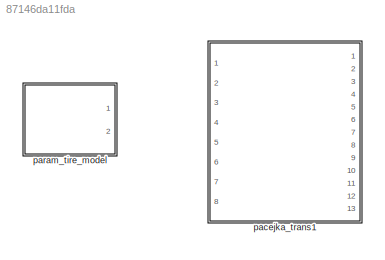
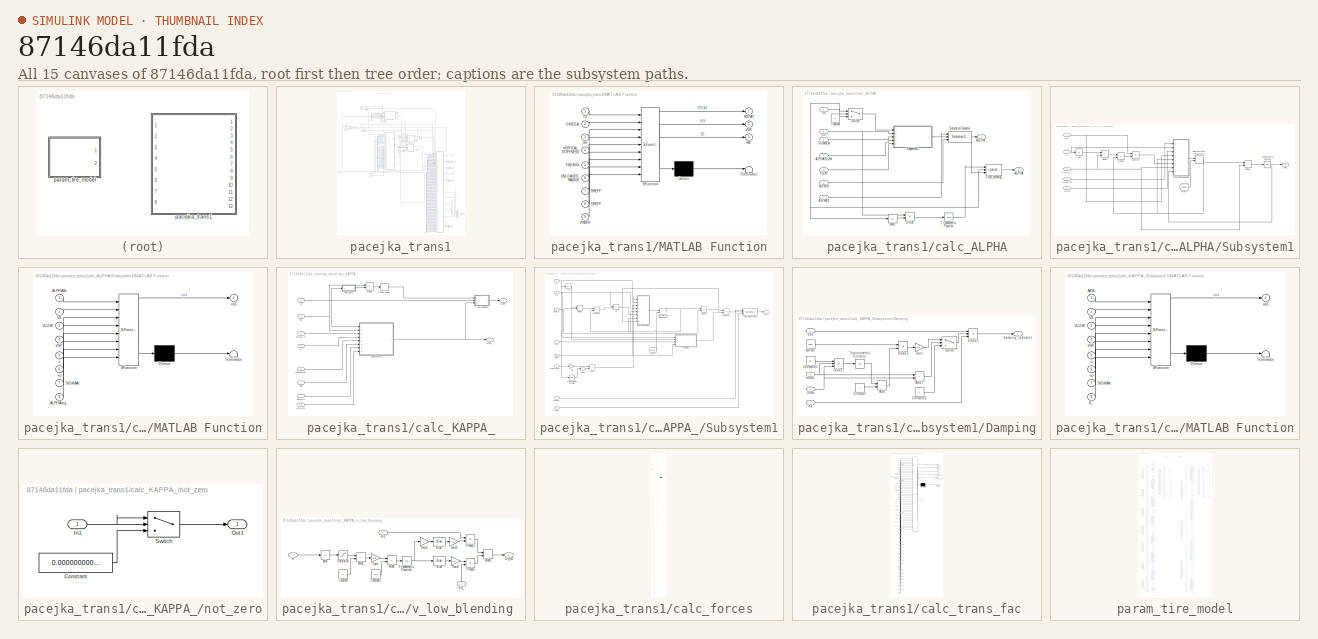
[diagram: thumbnail index - all 15 canvases of the model, root first then tree order]
MODEL slx_87146da11fda
KIND library
CONFIG AbsTol = auto
CONFIG EnableMultiTasking = on
CONFIG FixedStep = auto
CONFIG MaxStep = auto
CONFIG MinStep = auto
CONFIG RelTol = 1e-3
CONFIG SampleTimeConstraint = Unconstrained
CONFIG SolverName = ode45
CONFIG StartTime = 0.0
CONFIG StopTime = 10.0
BLOCK [SubSystem] pacejka_trans1
  Ports = [8, 13]
  RequestExecContextInheritance = off
BLOCK [Bias] pacejka_trans1/Bias
  Bias = 0.1
  SaturateOnIntegerOverflow = off
BLOCK [BusCreator] pacejka_trans1/Bus Creator
  DisplayOption = bar
  InheritFromInputs = on
  Inputs = 6
  Ports = [6, 1]
BLOCK [BusCreator] pacejka_trans1/Bus Creator1
  DisplayOption = bar
  InheritFromInputs = on
  Inputs = 2
  Ports = [2, 1]
BLOCK [BusSelector] pacejka_trans1/Bus Selector
  OutputSignals = LFZO,LCX,LMUX,LEX,LKX,LHX,LVX,LGAX,LCY,LMUY,LEY,LKY,LHY,LVY,LGAY,LTR,LRES,LGAZ,LXAL,LYKA,LVYKA,LS,LMX,LVMX,LMY
  Ports = [1, 25]
BLOCK [BusSelector] pacejka_trans1/Bus Selector1
  OutputSignals = LFZO,LSGAL,LSGKP,LKX,LKY,LGAX,LGAY
  Ports = [1, 7]
BLOCK [BusSelector] pacejka_trans1/Bus Selector2
  OutputSignals = PCX1,PDX1,PDX2,PDX3,PEX1,PEX2,PEX3,PEX4,PKX1,PKX2,PKX3,PHX1,PHX2,PVX1,PVX2,RBX1,RBX2,RCX1,REX1,REX2,RHX1,QSX1,QSX2,QSX3,PCY1,PDY1,PDY2,PDY3,PEY1,PEY2,PEY3,PEY4,PKY1,PKY2,PKY3,PHY1,PHY2,PHY3,PVY1,PVY2,PVY3,PVY4,RBY1,RBY2,RBY3,RCY1,REY1,REY2,RHY1,RHY2,RVY1,RVY2,RVY3,RVY4,RVY5,RVY6,QSY1,QSY2,QSY3,QSY4,QBZ1,QBZ2,QBZ3,QBZ4,QBZ5,QBZ9,QBZ10,QCZ1,QDZ1,QDZ2,QDZ3,QDZ4,QDZ6,QDZ7,QDZ8,QDZ9,QEZ1,QEZ2,QEZ3,QEZ4...<+94ch>
  Ports = [1, 99]
BLOCK [BusSelector] pacejka_trans1/Bus Selector3
  OutputSignals = IP,FNOMIN,UNLOADED_RADIUS,LONGVL,LOADINDEX
  Ports = [1, 5]
BLOCK [BusSelector] pacejka_trans1/Bus Selector4
  OutputSignals = IP,FNOMIN,UNLOADED_RADIUS,FZMIN
  Ports = [1, 4]
BLOCK [BusSelector] pacejka_trans1/Bus Selector5
  OutputSignals = PTX1,PTX2,PTX3,PTY1,PTY2,PKY1,PKY2,PKY3,PKX1,PKX2,PKX3,PDX1,PDX2,PDX3,PDY1,PDY2,PDY3,PIO,PPX1,PPX2,PPX3,PPX4,PPY1,PPY2,PPY3,PPY4
  Ports = [1, 26]
BLOCK [BusSelector] pacejka_trans1/Bus Selector6
  OutputSignals = VERTICAL_DAMPING,VERTICAL_STIFFNESS,FNOMIN,UNLOADED_RADIUS,BREFF,DREFF,FREFF
  Ports = [1, 7]
BLOCK [BusSelector] pacejka_trans1/Bus Selector7
  OutputSignals = KPUMAX,KPUMIN
  Ports = [1, 2]
BLOCK [BusSelector] pacejka_trans1/Bus Selector8
  OutputSignals = ALPMIN,ALPMAX
  Ports = [1, 2]
BLOCK [BusSelector] pacejka_trans1/Bus Selector9
  OutputSignals = TYRESIDE
  Ports = [1, 1]
BLOCK [Constant] pacejka_trans1/Constant
  Value = mounted_side
BLOCK [Outport] pacejka_trans1/F0
  Port = 13
  VectorParamsAs1DForOutWhenUnconnected = off
BLOCK [Outport] pacejka_trans1/Fx
  VectorParamsAs1DForOutWhenUnconnected = off
BLOCK [Outport] pacejka_trans1/Fy
  Port = 2
  VectorParamsAs1DForOutWhenUnconnected = off
BLOCK [Inport] pacejka_trans1/Fz
BLOCK [Gain] pacejka_trans1/Gain
  Gain = UC_TireFy
BLOCK [SubSystem] pacejka_trans1/MATLAB Function
  ErrorFcn = Stateflow.Translate.translate
  PermitHierarchicalResolution = ExplicitOnly
  Ports = [9, 3]
  RequestExecContextInheritance = off
  SFBlockType = MATLAB Function
  TreatAsAtomicUnit = on
BLOCK [Demux] pacejka_trans1/MATLAB Function/ Demux 
  Outputs = 1
  Ports = [1, 1]
BLOCK [S-Function] pacejka_trans1/MATLAB Function/ SFunction 
  EnableBusSupport = off
  FunctionName = sf_sfun
  PortCounts = [9 4]
  Ports = [9, 4]
  SFcnIsStateOwnerBlock = off
  SFunctionDeploymentMode = off
  Tag = Stateflow S-Function 1
BLOCK [Terminator] pacejka_trans1/MATLAB Function/ Terminator 
BLOCK [Inport] pacejka_trans1/MATLAB Function/BREFF
  Port = 7
BLOCK [Inport] pacejka_trans1/MATLAB Function/DREFF
  Port = 8
BLOCK [Inport] pacejka_trans1/MATLAB Function/FNOMIN
  Port = 5
BLOCK [Inport] pacejka_trans1/MATLAB Function/FREFF
  Port = 9
BLOCK [Inport] pacejka_trans1/MATLAB Function/FZ
BLOCK [Inport] pacejka_trans1/MATLAB Function/OMEGA
  Port = 2
BLOCK [Outport] pacejka_trans1/MATLAB Function/RE
  Port = 3
  VectorParamsAs1DForOutWhenUnconnected = off
BLOCK [Outport] pacejka_trans1/MATLAB Function/RSTAT
  VectorParamsAs1DForOutWhenUnconnected = off
BLOCK [Inport] pacejka_trans1/MATLAB Function/UNLOADED_RADIUS
  Port = 6
BLOCK [Inport] pacejka_trans1/MATLAB Function/VERTICAL_STIFFNESS
  Port = 4
BLOCK [Outport] pacejka_trans1/MATLAB Function/VSX
  Port = 2
  VectorParamsAs1DForOutWhenUnconnected = off
BLOCK [Inport] pacejka_trans1/MATLAB Function/VX
  Port = 3
BLOCK [Outport] pacejka_trans1/Mx
  Port = 3
  VectorParamsAs1DForOutWhenUnconnected = off
BLOCK [Outport] pacejka_trans1/My
  Port = 4
  VectorParamsAs1DForOutWhenUnconnected = off
BLOCK [Outport] pacejka_trans1/Mz
  Port = 5
  VectorParamsAs1DForOutWhenUnconnected = off
BLOCK [Product] pacejka_trans1/Product
  Ports = [2, 1]
  RndMeth = Zero
BLOCK [Product] pacejka_trans1/Product1
  Ports = [2, 1]
  RndMeth = Zero
BLOCK [Product] pacejka_trans1/Product2
  Ports = [2, 1]
  RndMeth = Zero
BLOCK [Product] pacejka_trans1/Product3
  Ports = [2, 1]
  RndMeth = Zero
BLOCK [Product] pacejka_trans1/Product4
  Ports = [2, 1]
  RndMeth = Zero
BLOCK [Product] pacejka_trans1/Product5
  Ports = [2, 1]
  RndMeth = Zero
BLOCK [Saturate] pacejka_trans1/Saturation
  LowerLimit = 0.001
  UpperLimit = 99999999
BLOCK [Signum] pacejka_trans1/Sign
BLOCK [Terminator] pacejka_trans1/Terminator_1
BLOCK [Terminator] pacejka_trans1/Terminator_2
BLOCK [Constant] pacejka_trans1/Vlow
  Value = 3
BLOCK [Outport] pacejka_trans1/alpha
  Port = 6
  VectorParamsAs1DForOutWhenUnconnected = off
BLOCK [SubSystem] pacejka_trans1/calc_ALPHA
  Ports = [7, 2]
  RequestExecContextInheritance = off
BLOCK [Outport] pacejka_trans1/calc_ALPHA/ALPHA
  Port = 2
  VectorParamsAs1DForOutWhenUnconnected = off
BLOCK [Inport] pacejka_trans1/calc_ALPHA/ALPHASLOW
  Port = 4
BLOCK [Outport] pacejka_trans1/calc_ALPHA/ALPHA_
  VectorParamsAs1DForOutWhenUnconnected = off
BLOCK [Inport] pacejka_trans1/calc_ALPHA/ALPMAX
  Port = 7
BLOCK [Inport] pacejka_trans1/calc_ALPHA/ALPMIN
  Port = 6
BLOCK [Abs] pacejka_trans1/calc_ALPHA/Abs
  SaturateOnIntegerOverflow = off
BLOCK [Constant] pacejka_trans1/calc_ALPHA/Constant
  Value = 3
  VectorParams1D = off
BLOCK [Product] pacejka_trans1/calc_ALPHA/Divide
  Inputs = */
  Ports = [2, 1]
BLOCK [Inport] pacejka_trans1/calc_ALPHA/SIGMA_A
  Port = 3
BLOCK [Reference] pacejka_trans1/calc_ALPHA/Saturation Dynamic  REF=simulink/Discontinuities/Saturation
Dynamic
  Ports = [3, 1]
  SourceBlock = simulink/Discontinuities/Saturation\nDynamic
  SourceProductBaseCode = SL
  SourceType = Saturation Dynamic
BLOCK [SubSystem] pacejka_trans1/calc_ALPHA/Subsystem1
  Ports = [5, 1]
  RequestExecContextInheritance = off
BLOCK [Inport] pacejka_trans1/calc_ALPHA/Subsystem1/ALPHASLOW
  Port = 4
BLOCK [Outport] pacejka_trans1/calc_ALPHA/Subsystem1/ALPHA_
  VectorParamsAs1DForOutWhenUnconnected = off
BLOCK [Abs] pacejka_trans1/calc_ALPHA/Subsystem1/Abs
  SaturateOnIntegerOverflow = off
BLOCK [DiscreteIntegrator] pacejka_trans1/calc_ALPHA/Subsystem1/Discrete-Time Integrator2
  ExternalReset = sampled level
  ICPrevOutput = DiscIntNeverNeededParam
  ICPrevScaledInput = DiscIntNeverNeededParam
  Ports = [2, 1]
  SampleTime = -1
BLOCK [Product] pacejka_trans1/calc_ALPHA/Subsystem1/Divide1
  Inputs = */
  Ports = [2, 1]
BLOCK [Product] pacejka_trans1/calc_ALPHA/Subsystem1/Divide2
  Inputs = */
  Ports = [2, 1]
BLOCK [From] pacejka_trans1/calc_ALPHA/Subsystem1/From
  GotoTag = reset
  TagVisibility = scoped
BLOCK [SubSystem] pacejka_trans1/calc_ALPHA/Subsystem1/MATLAB Function
  ErrorFcn = Stateflow.Translate.translate
  PermitHierarchicalResolution = ExplicitOnly
  Ports = [8, 1]
  RequestExecContextInheritance = off
  SFBlockType = MATLAB Function
  TreatAsAtomicUnit = on
BLOCK [Demux] pacejka_trans1/calc_ALPHA/Subsystem1/MATLAB Function/ Demux 
  Outputs = 1
  Ports = [1, 1]
BLOCK [S-Function] pacejka_trans1/calc_ALPHA/Subsystem1/MATLAB Function/ SFunction 
  EnableBusSupport = off
  FunctionName = sf_sfun
  PortCounts = [8 2]
  Ports = [8, 2]
  SFcnIsStateOwnerBlock = off
  SFunctionDeploymentMode = off
  Tag = Stateflow S-Function 7
BLOCK [Terminator] pacejka_trans1/calc_ALPHA/Subsystem1/MATLAB Function/ Terminator 
BLOCK [Inport] pacejka_trans1/calc_ALPHA/Subsystem1/MATLAB Function/ALPHASL
BLOCK [Inport] pacejka_trans1/calc_ALPHA/Subsystem1/MATLAB Function/ALPHAreq_
  Port = 8
BLOCK [Inport] pacejka_trans1/calc_ALPHA/Subsystem1/MATLAB Function/SIGMAA
  Port = 7
BLOCK [Inport] pacejka_trans1/calc_ALPHA/Subsystem1/MATLAB Function/VLOW
  Port = 3
BLOCK [Inport] pacejka_trans1/calc_ALPHA/Subsystem1/MATLAB Function/VSY
  Port = 4
BLOCK [Inport] pacejka_trans1/calc_ALPHA/Subsystem1/MATLAB Function/VX
  Port = 2
BLOCK [Inport] pacejka_trans1/calc_ALPHA/Subsystem1/MATLAB Function/v
  Port = 5
BLOCK [Inport] pacejka_trans1/calc_ALPHA/Subsystem1/MATLAB Function/vp
  Port = 6
BLOCK [Outport] pacejka_trans1/calc_ALPHA/Subsystem1/MATLAB Function/vp1
  VectorParamsAs1DForOutWhenUnconnected = off
BLOCK [Product] pacejka_trans1/calc_ALPHA/Subsystem1/Product
  Ports = [2, 1]
  RndMeth = Zero
BLOCK [Inport] pacejka_trans1/calc_ALPHA/Subsystem1/SIGMA_A
  Port = 3
BLOCK [Sum] pacejka_trans1/calc_ALPHA/Subsystem1/Subtract
  IconShape = rectangular
  Inputs = +-
  Ports = [2, 1]
BLOCK [Trigonometry] pacejka_trans1/calc_ALPHA/Subsystem1/Trigonometric Function
  Operator = atan
  Ports = [1, 1]
BLOCK [Inport] pacejka_trans1/calc_ALPHA/Subsystem1/VLOW
  Port = 5
BLOCK [Inport] pacejka_trans1/calc_ALPHA/Subsystem1/VSY
  Port = 2
BLOCK [Inport] pacejka_trans1/calc_ALPHA/Subsystem1/VX
BLOCK [Switch] pacejka_trans1/calc_ALPHA/Switch
  InputSameDT = off
  SaturateOnIntegerOverflow = off
  Threshold = 3
BLOCK [Trigonometry] pacejka_trans1/calc_ALPHA/Trigonometric Function
  Operator = atan
  Ports = [1, 1]
BLOCK [Inport] pacejka_trans1/calc_ALPHA/VLOW
  Port = 5
BLOCK [Inport] pacejka_trans1/calc_ALPHA/VSY
  Port = 2
BLOCK [Inport] pacejka_trans1/calc_ALPHA/VX
BLOCK [Reference] pacejka_trans1/calc_ALPHA/v_low_blending   REF=$bdroot/pacejka_trans1/calc_KAPPA_/v_low_blending

  Ports = [3, 1]
  SourceBlock = $bdroot/pacejka_trans1/calc_KAPPA_/v_low_blending
  SourceType = SubSystem
BLOCK [SubSystem] pacejka_trans1/calc_KAPPA_
  Ports = [8, 2]
  RequestExecContextInheritance = off
BLOCK [Product] pacejka_trans1/calc_KAPPA_/Divide
  Inputs = */
  Ports = [2, 1]
BLOCK [Outport] pacejka_trans1/calc_KAPPA_/KAPPA
  Port = 2
  VectorParamsAs1DForOutWhenUnconnected = off
BLOCK [Inport] pacejka_trans1/calc_KAPPA_/KAPPASLOW
  Port = 5
BLOCK [Outport] pacejka_trans1/calc_KAPPA_/KAPPA_
  VectorParamsAs1DForOutWhenUnconnected = off
BLOCK [Inport] pacejka_trans1/calc_KAPPA_/KPUMAX
  Port = 7
BLOCK [Inport] pacejka_trans1/calc_KAPPA_/KPUMIN
  Port = 8
BLOCK [Inport] pacejka_trans1/calc_KAPPA_/Kx
  Port = 4
BLOCK [Inport] pacejka_trans1/calc_KAPPA_/SIGMA_K
  Port = 3
BLOCK [SubSystem] pacejka_trans1/calc_KAPPA_/Subsystem1
  Ports = [8, 1]
  RequestExecContextInheritance = off
BLOCK [Abs] pacejka_trans1/calc_KAPPA_/Subsystem1/Abs
  SaturateOnIntegerOverflow = off
BLOCK [Sum] pacejka_trans1/calc_KAPPA_/Subsystem1/Add
  IconShape = rectangular
  Inputs = --
  Ports = [2, 1]
BLOCK [Sum] pacejka_trans1/calc_KAPPA_/Subsystem1/Add1
  IconShape = rectangular
  Ports = [2, 1]
BLOCK [SubSystem] pacejka_trans1/calc_KAPPA_/Subsystem1/Damping
  Ports = [4, 1]
  RequestExecContextInheritance = off
BLOCK [Sum] pacejka_trans1/calc_KAPPA_/Subsystem1/Damping/Add
  IconShape = rectangular
  Ports = [2, 1]
BLOCK [Sum] pacejka_trans1/calc_KAPPA_/Subsystem1/Damping/Add1
  IconShape = rectangular
  Inputs = -+
  Ports = [2, 1]
BLOCK [Constant] pacejka_trans1/calc_KAPPA_/Subsystem1/Damping/Constant
BLOCK [Constant] pacejka_trans1/calc_KAPPA_/Subsystem1/Damping/Constant1
  Value = pi
BLOCK [Constant] pacejka_trans1/calc_KAPPA_/Subsystem1/Damping/Constant2
  Value = 0
BLOCK [Product] pacejka_trans1/calc_KAPPA_/Subsystem1/Damping/Divide1
  Inputs = **/
  Ports = [3, 1]
BLOCK [Product] pacejka_trans1/calc_KAPPA_/Subsystem1/Damping/Divide2
  Inputs = **
  Ports = [2, 1]
BLOCK [Product] pacejka_trans1/calc_KAPPA_/Subsystem1/Damping/Divide3
  Inputs = **/
  Ports = [3, 1]
BLOCK [Gain] pacejka_trans1/calc_KAPPA_/Subsystem1/Damping/Gain
  Gain = 0.5
BLOCK [Inport] pacejka_trans1/calc_KAPPA_/Subsystem1/Damping/KX
  Port = 3
BLOCK [Switch] pacejka_trans1/calc_KAPPA_/Subsystem1/Damping/Switch
  InputSameDT = off
  SaturateOnIntegerOverflow = off
BLOCK [Trigonometry] pacejka_trans1/calc_KAPPA_/Subsystem1/Damping/Trigonometric Function
  Operator = cos
  Ports = [1, 1]
BLOCK [Inport] pacejka_trans1/calc_KAPPA_/Subsystem1/Damping/VSx
BLOCK [Inport] pacejka_trans1/calc_KAPPA_/Subsystem1/Damping/Vlow
  Port = 4
BLOCK [Inport] pacejka_trans1/calc_KAPPA_/Subsystem1/Damping/absVx
  Port = 2
BLOCK [Outport] pacejka_trans1/calc_KAPPA_/Subsystem1/Damping/damping_reduction
  VectorParamsAs1DForOutWhenUnconnected = off
BLOCK [Constant] pacejka_trans1/calc_KAPPA_/Subsystem1/Damping/kvlow0
  Value = 1500
BLOCK [DiscreteIntegrator] pacejka_trans1/calc_KAPPA_/Subsystem1/Discrete-Time Integrator2
  ExternalReset = sampled level
  ICPrevOutput = DiscIntNeverNeededParam
  ICPrevScaledInput = DiscIntNeverNeededParam
  Ports = [2, 1]
  SampleTime = -1
BLOCK [Product] pacejka_trans1/calc_KAPPA_/Subsystem1/Divide1
  Inputs = */
  Ports = [2, 1]
BLOCK [Product] pacejka_trans1/calc_KAPPA_/Subsystem1/Divide2
  Inputs = */
  Ports = [2, 1]
BLOCK [From] pacejka_trans1/calc_KAPPA_/Subsystem1/From
  GotoTag = reset
  TagVisibility = scoped
BLOCK [Gain] pacejka_trans1/calc_KAPPA_/Subsystem1/Gain
  Gain = 0.001
BLOCK [Gain] pacejka_trans1/calc_KAPPA_/Subsystem1/Gain1
  Gain = 2
BLOCK [Inport] pacejka_trans1/calc_KAPPA_/Subsystem1/KAPPASLOW
  Port = 5
BLOCK [Outport] pacejka_trans1/calc_KAPPA_/Subsystem1/KAPPA_
  VectorParamsAs1DForOutWhenUnconnected = off
BLOCK [Inport] pacejka_trans1/calc_KAPPA_/Subsystem1/KPUMAX
  Port = 7
BLOCK [Inport] pacejka_trans1/calc_KAPPA_/Subsystem1/KPUMIN
  Port = 8
BLOCK [Inport] pacejka_trans1/calc_KAPPA_/Subsystem1/Kx
  Port = 4
BLOCK [SubSystem] pacejka_trans1/calc_KAPPA_/Subsystem1/MATLAB Function
  ErrorFcn = Stateflow.Translate.translate
  PermitHierarchicalResolution = ExplicitOnly
  Ports = [8, 1]
  RequestExecContextInheritance = off
  SFBlockType = MATLAB Function
  TreatAsAtomicUnit = on
BLOCK [Demux] pacejka_trans1/calc_KAPPA_/Subsystem1/MATLAB Function/ Demux 
  Outputs = 1
  Ports = [1, 1]
BLOCK [S-Function] pacejka_trans1/calc_KAPPA_/Subsystem1/MATLAB Function/ SFunction 
  EnableBusSupport = off
  FunctionName = sf_sfun
  PortCounts = [8 2]
  Ports = [8, 2]
  SFcnIsStateOwnerBlock = off
  SFunctionDeploymentMode = off
  Tag = Stateflow S-Function 8
BLOCK [Terminator] pacejka_trans1/calc_KAPPA_/Subsystem1/MATLAB Function/ Terminator 
BLOCK [Inport] pacejka_trans1/calc_KAPPA_/Subsystem1/MATLAB Function/AKSL
BLOCK [Inport] pacejka_trans1/calc_KAPPA_/Subsystem1/MATLAB Function/K_
  Port = 8
BLOCK [Inport] pacejka_trans1/calc_KAPPA_/Subsystem1/MATLAB Function/SIGMAK
  Port = 7
BLOCK [Inport] pacejka_trans1/calc_KAPPA_/Subsystem1/MATLAB Function/VLOW
  Port = 3
BLOCK [Inport] pacejka_trans1/calc_KAPPA_/Subsystem1/MATLAB Function/VSX
  Port = 4
BLOCK [Inport] pacejka_trans1/calc_KAPPA_/Subsystem1/MATLAB Function/VX
  Port = 2
BLOCK [Inport] pacejka_trans1/calc_KAPPA_/Subsystem1/MATLAB Function/u
  Port = 5
BLOCK [Inport] pacejka_trans1/calc_KAPPA_/Subsystem1/MATLAB Function/up
  Port = 6
BLOCK [Outport] pacejka_trans1/calc_KAPPA_/Subsystem1/MATLAB Function/up1
  VectorParamsAs1DForOutWhenUnconnected = off
BLOCK [Product] pacejka_trans1/calc_KAPPA_/Subsystem1/Product
  Ports = [2, 1]
  RndMeth = Zero
BLOCK [Inport] pacejka_trans1/calc_KAPPA_/Subsystem1/SIGMA_K
  Port = 3
BLOCK [Reference] pacejka_trans1/calc_KAPPA_/Subsystem1/Saturation Dynamic  REF=simulink/Discontinuities/Saturation
Dynamic
  Ports = [3, 1]
  SourceBlock = simulink/Discontinuities/Saturation\nDynamic
  SourceProductBaseCode = SL
  SourceType = Saturation Dynamic
BLOCK [Sum] pacejka_trans1/calc_KAPPA_/Subsystem1/Subtract
  IconShape = rectangular
  Inputs = +-
  Ports = [2, 1]
BLOCK [Trigonometry] pacejka_trans1/calc_KAPPA_/Subsystem1/Trigonometric Function
  Operator = tanh
  Ports = [1, 1]
BLOCK [Inport] pacejka_trans1/calc_KAPPA_/Subsystem1/VSX
  Port = 2
BLOCK [Inport] pacejka_trans1/calc_KAPPA_/Subsystem1/VX
BLOCK [Inport] pacejka_trans1/calc_KAPPA_/Subsystem1/Vlow
  Port = 6
BLOCK [UnaryMinus] pacejka_trans1/calc_KAPPA_/Unary Minus
BLOCK [Inport] pacejka_trans1/calc_KAPPA_/VSX
  Port = 2
BLOCK [Inport] pacejka_trans1/calc_KAPPA_/VX
BLOCK [Inport] pacejka_trans1/calc_KAPPA_/Vlow
  Port = 6
BLOCK [SubSystem] pacejka_trans1/calc_KAPPA_/not_zero
  Ports = [1, 1]
  RequestExecContextInheritance = off
BLOCK [Constant] pacejka_trans1/calc_KAPPA_/not_zero/Constant
  Value = 0.0000000000001
BLOCK [Inport] pacejka_trans1/calc_KAPPA_/not_zero/In1
BLOCK [Outport] pacejka_trans1/calc_KAPPA_/not_zero/Out1
  VectorParamsAs1DForOutWhenUnconnected = off
BLOCK [Switch] pacejka_trans1/calc_KAPPA_/not_zero/Switch
  Criteria = u2 ~= 0
  InputSameDT = off
  SaturateOnIntegerOverflow = off
BLOCK [SubSystem] pacejka_trans1/calc_KAPPA_/v_low_blending 
  Ports = [3, 1]
  RequestExecContextInheritance = off
BLOCK [Abs] pacejka_trans1/calc_KAPPA_/v_low_blending /Abs
  SaturateOnIntegerOverflow = off
BLOCK [Sum] pacejka_trans1/calc_KAPPA_/v_low_blending /Add1
  IconShape = rectangular
  Inputs = -+
  Ports = [2, 1]
BLOCK [Sum] pacejka_trans1/calc_KAPPA_/v_low_blending /Add2
  IconShape = rectangular
  Inputs = +-
  Ports = [2, 1]
BLOCK [Sum] pacejka_trans1/calc_KAPPA_/v_low_blending /Add3
  IconShape = rectangular
  Ports = [2, 1]
BLOCK [Bias] pacejka_trans1/calc_KAPPA_/v_low_blending /Bias
  Bias = 1
  SaturateOnIntegerOverflow = off
BLOCK [Bias] pacejka_trans1/calc_KAPPA_/v_low_blending /Bias1
  Bias = 1
  SaturateOnIntegerOverflow = off
BLOCK [Constant] pacejka_trans1/calc_KAPPA_/v_low_blending /Constant
  Value = 3
BLOCK [Constant] pacejka_trans1/calc_KAPPA_/v_low_blending /Constant2
  Value = 2*pi
BLOCK [Gain] pacejka_trans1/calc_KAPPA_/v_low_blending /Gain
  Gain = 2*pi
BLOCK [Gain] pacejka_trans1/calc_KAPPA_/v_low_blending /Gain1
  Gain = 0.5
BLOCK [Gain] pacejka_trans1/calc_KAPPA_/v_low_blending /Gain2
  Gain = -1
BLOCK [Gain] pacejka_trans1/calc_KAPPA_/v_low_blending /Gain3
  Gain = 0.5
BLOCK [Product] pacejka_trans1/calc_KAPPA_/v_low_blending /Product
  Ports = [2, 1]
BLOCK [Product] pacejka_trans1/calc_KAPPA_/v_low_blending /Product1
  Ports = [2, 1]
BLOCK [Saturate] pacejka_trans1/calc_KAPPA_/v_low_blending /Saturation
  LowerLimit = 0
  UpperLimit = 3
BLOCK [Trigonometry] pacejka_trans1/calc_KAPPA_/v_low_blending /Trigonometric Function1
  Operator = tanh
  Ports = [1, 1]
BLOCK [Inport] pacejka_trans1/calc_KAPPA_/v_low_blending /slip
BLOCK [Inport] pacejka_trans1/calc_KAPPA_/v_low_blending /slip_
  NameLocation = right
  Port = 3
BLOCK [Outport] pacejka_trans1/calc_KAPPA_/v_low_blending /slip_out
  VectorParamsAs1DForOutWhenUnconnected = off
BLOCK [Inport] pacejka_trans1/calc_KAPPA_/v_low_blending /vx
  Port = 2
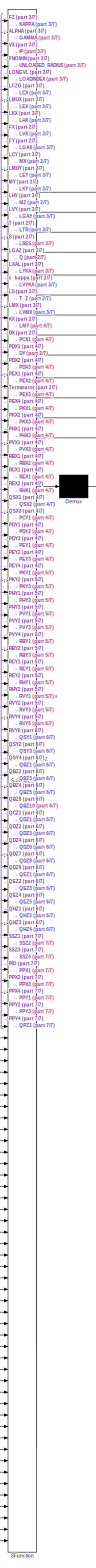
[diagram: pacejka_trans1/calc_forces - part 1/7, top center region]
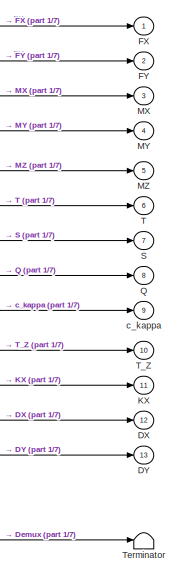
[diagram: pacejka_trans1/calc_forces - part 2/7, top right region]
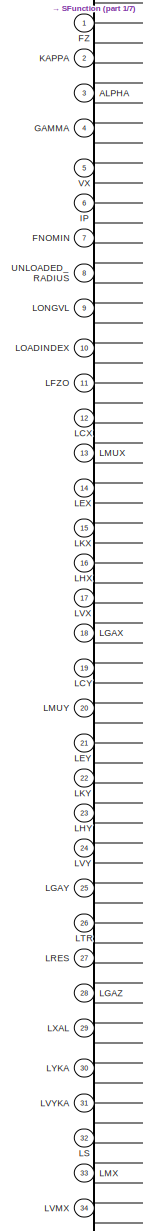
[diagram: pacejka_trans1/calc_forces - part 3/7, top left region]
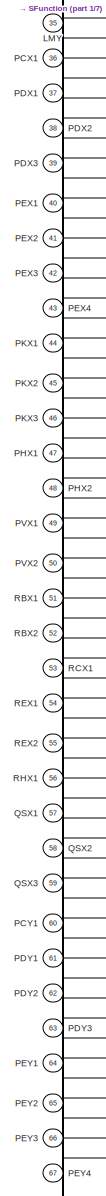
[diagram: pacejka_trans1/calc_forces - part 4/7, middle left region]
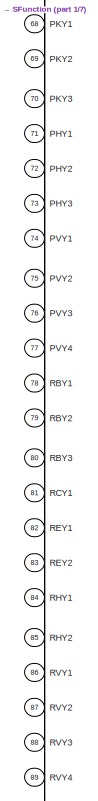
[diagram: pacejka_trans1/calc_forces - part 5/7, middle left region]
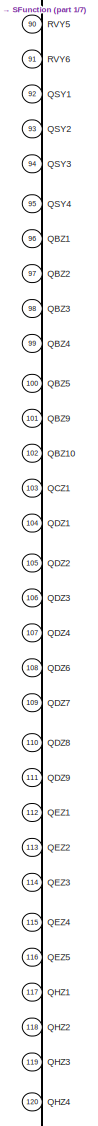
[diagram: pacejka_trans1/calc_forces - part 6/7, bottom left region]
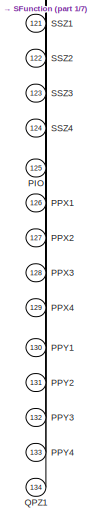
[diagram: pacejka_trans1/calc_forces - part 7/7, bottom left region]
BLOCK [SubSystem] pacejka_trans1/calc_forces
  ErrorFcn = Stateflow.Translate.translate
  PermitHierarchicalResolution = ExplicitOnly
  Ports = [134, 13]
  RequestExecContextInheritance = off
  SFBlockType = MATLAB Function
  TreatAsAtomicUnit = on
BLOCK [Demux] pacejka_trans1/calc_forces/ Demux 
  Outputs = 1
  Ports = [1, 1]
BLOCK [S-Function] pacejka_trans1/calc_forces/ SFunction 
  EnableBusSupport = off
  FunctionName = sf_sfun
  PortCounts = [134 14]
  Ports = [134, 14]
  SFcnIsStateOwnerBlock = off
  SFunctionDeploymentMode = off
  Tag = Stateflow S-Function 2
BLOCK [Terminator] pacejka_trans1/calc_forces/ Terminator 
BLOCK [Inport] pacejka_trans1/calc_forces/ALPHA
  Port = 3
BLOCK [Outport] pacejka_trans1/calc_forces/DX
  Port = 12
  VectorParamsAs1DForOutWhenUnconnected = off
BLOCK [Outport] pacejka_trans1/calc_forces/DY
  Port = 13
  VectorParamsAs1DForOutWhenUnconnected = off
BLOCK [Inport] pacejka_trans1/calc_forces/FNOMIN
  Port = 7
BLOCK [Outport] pacejka_trans1/calc_forces/FX
  VectorParamsAs1DForOutWhenUnconnected = off
BLOCK [Outport] pacejka_trans1/calc_forces/FY
  Port = 2
  VectorParamsAs1DForOutWhenUnconnected = off
BLOCK [Inport] pacejka_trans1/calc_forces/FZ
BLOCK [Inport] pacejka_trans1/calc_forces/GAMMA
  Port = 4
BLOCK [Inport] pacejka_trans1/calc_forces/IP
  Port = 6
BLOCK [Inport] pacejka_trans1/calc_forces/KAPPA
  Port = 2
BLOCK [Outport] pacejka_trans1/calc_forces/KX
  Port = 11
  VectorParamsAs1DForOutWhenUnconnected = off
BLOCK [Inport] pacejka_trans1/calc_forces/LCX
  Port = 12
BLOCK [Inport] pacejka_trans1/calc_forces/LCY
  Port = 19
BLOCK [Inport] pacejka_trans1/calc_forces/LEX
  Port = 14
BLOCK [Inport] pacejka_trans1/calc_forces/LEY
  Port = 21
BLOCK [Inport] pacejka_trans1/calc_forces/LFZO
  Port = 11
BLOCK [Inport] pacejka_trans1/calc_forces/LGAX
  Port = 18
BLOCK [Inport] pacejka_trans1/calc_forces/LGAY
  Port = 25
BLOCK [Inport] pacejka_trans1/calc_forces/LGAZ
  Port = 28
BLOCK [Inport] pacejka_trans1/calc_forces/LHX
  Port = 16
BLOCK [Inport] pacejka_trans1/calc_forces/LHY
  Port = 23
BLOCK [Inport] pacejka_trans1/calc_forces/LKX
  Port = 15
BLOCK [Inport] pacejka_trans1/calc_forces/LKY
  Port = 22
BLOCK [Inport] pacejka_trans1/calc_forces/LMUX
  Port = 13
BLOCK [Inport] pacejka_trans1/calc_forces/LMUY
  Port = 20
BLOCK [Inport] pacejka_trans1/calc_forces/LMX
  Port = 33
BLOCK [Inport] pacejka_trans1/calc_forces/LMY
  Port = 35
BLOCK [Inport] pacejka_trans1/calc_forces/LOADINDEX
  Port = 10
BLOCK [Inport] pacejka_trans1/calc_forces/LONGVL
  Port = 9
BLOCK [Inport] pacejka_trans1/calc_forces/LRES
  Port = 27
BLOCK [Inport] pacejka_trans1/calc_forces/LS
  Port = 32
BLOCK [Inport] pacejka_trans1/calc_forces/LTR
  Port = 26
BLOCK [Inport] pacejka_trans1/calc_forces/LVMX
  Port = 34
BLOCK [Inport] pacejka_trans1/calc_forces/LVX
  Port = 17
BLOCK [Inport] pacejka_trans1/calc_forces/LVY
  Port = 24
BLOCK [Inport] pacejka_trans1/calc_forces/LVYKA
  Port = 31
BLOCK [Inport] pacejka_trans1/calc_forces/LXAL
  Port = 29
BLOCK [Inport] pacejka_trans1/calc_forces/LYKA
  Port = 30
BLOCK [Outport] pacejka_trans1/calc_forces/MX
  Port = 3
  VectorParamsAs1DForOutWhenUnconnected = off
BLOCK [Outport] pacejka_trans1/calc_forces/MY
  Port = 4
  VectorParamsAs1DForOutWhenUnconnected = off
BLOCK [Outport] pacejka_trans1/calc_forces/MZ
  Port = 5
  VectorParamsAs1DForOutWhenUnconnected = off
BLOCK [Inport] pacejka_trans1/calc_forces/PCX1
  Port = 36
BLOCK [Inport] pacejka_trans1/calc_forces/PCY1
  Port = 60
BLOCK [Inport] pacejka_trans1/calc_forces/PDX1
  Port = 37
BLOCK [Inport] pacejka_trans1/calc_forces/PDX2
  Port = 38
BLOCK [Inport] pacejka_trans1/calc_forces/PDX3
  Port = 39
BLOCK [Inport] pacejka_trans1/calc_forces/PDY1
  Port = 61
BLOCK [Inport] pacejka_trans1/calc_forces/PDY2
  Port = 62
BLOCK [Inport] pacejka_trans1/calc_forces/PDY3
  Port = 63
BLOCK [Inport] pacejka_trans1/calc_forces/PEX1
  Port = 40
BLOCK [Inport] pacejka_trans1/calc_forces/PEX2
  Port = 41
BLOCK [Inport] pacejka_trans1/calc_forces/PEX3
  Port = 42
BLOCK [Inport] pacejka_trans1/calc_forces/PEX4
  Port = 43
BLOCK [Inport] pacejka_trans1/calc_forces/PEY1
  Port = 64
BLOCK [Inport] pacejka_trans1/calc_forces/PEY2
  Port = 65
BLOCK [Inport] pacejka_trans1/calc_forces/PEY3
  Port = 66
BLOCK [Inport] pacejka_trans1/calc_forces/PEY4
  Port = 67
BLOCK [Inport] pacejka_trans1/calc_forces/PHX1
  Port = 47
BLOCK [Inport] pacejka_trans1/calc_forces/PHX2
  Port = 48
BLOCK [Inport] pacejka_trans1/calc_forces/PHY1
  Port = 71
BLOCK [Inport] pacejka_trans1/calc_forces/PHY2
  Port = 72
BLOCK [Inport] pacejka_trans1/calc_forces/PHY3
  Port = 73
BLOCK [Inport] pacejka_trans1/calc_forces/PIO
  Port = 125
BLOCK [Inport] pacejka_trans1/calc_forces/PKX1
  Port = 44
BLOCK [Inport] pacejka_trans1/calc_forces/PKX2
  Port = 45
BLOCK [Inport] pacejka_trans1/calc_forces/PKX3
  Port = 46
BLOCK [Inport] pacejka_trans1/calc_forces/PKY1
  Port = 68
BLOCK [Inport] pacejka_trans1/calc_forces/PKY2
  Port = 69
BLOCK [Inport] pacejka_trans1/calc_forces/PKY3
  Port = 70
BLOCK [Inport] pacejka_trans1/calc_forces/PPX1
  Port = 126
BLOCK [Inport] pacejka_trans1/calc_forces/PPX2
  Port = 127
BLOCK [Inport] pacejka_trans1/calc_forces/PPX3
  Port = 128
BLOCK [Inport] pacejka_trans1/calc_forces/PPX4
  Port = 129
BLOCK [Inport] pacejka_trans1/calc_forces/PPY1
  Port = 130
BLOCK [Inport] pacejka_trans1/calc_forces/PPY2
  Port = 131
BLOCK [Inport] pacejka_trans1/calc_forces/PPY3
  Port = 132
BLOCK [Inport] pacejka_trans1/calc_forces/PPY4
  Port = 133
BLOCK [Inport] pacejka_trans1/calc_forces/PVX1
  Port = 49
BLOCK [Inport] pacejka_trans1/calc_forces/PVX2
  Port = 50
BLOCK [Inport] pacejka_trans1/calc_forces/PVY1
  Port = 74
BLOCK [Inport] pacejka_trans1/calc_forces/PVY2
  Port = 75
BLOCK [Inport] pacejka_trans1/calc_forces/PVY3
  Port = 76
BLOCK [Inport] pacejka_trans1/calc_forces/PVY4
  Port = 77
BLOCK [Outport] pacejka_trans1/calc_forces/Q
  Port = 8
  VectorParamsAs1DForOutWhenUnconnected = off
BLOCK [Inport] pacejka_trans1/calc_forces/QBZ1
  Port = 96
BLOCK [Inport] pacejka_trans1/calc_forces/QBZ10
  Port = 102
BLOCK [Inport] pacejka_trans1/calc_forces/QBZ2
  Port = 97
BLOCK [Inport] pacejka_trans1/calc_forces/QBZ3
  Port = 98
BLOCK [Inport] pacejka_trans1/calc_forces/QBZ4
  Port = 99
BLOCK [Inport] pacejka_trans1/calc_forces/QBZ5
  Port = 100
BLOCK [Inport] pacejka_trans1/calc_forces/QBZ9
  Port = 101
BLOCK [Inport] pacejka_trans1/calc_forces/QCZ1
  Port = 103
BLOCK [Inport] pacejka_trans1/calc_forces/QDZ1
  Port = 104
BLOCK [Inport] pacejka_trans1/calc_forces/QDZ2
  Port = 105
BLOCK [Inport] pacejka_trans1/calc_forces/QDZ3
  Port = 106
BLOCK [Inport] pacejka_trans1/calc_forces/QDZ4
  Port = 107
BLOCK [Inport] pacejka_trans1/calc_forces/QDZ6
  Port = 108
BLOCK [Inport] pacejka_trans1/calc_forces/QDZ7
  Port = 109
BLOCK [Inport] pacejka_trans1/calc_forces/QDZ8
  Port = 110
BLOCK [Inport] pacejka_trans1/calc_forces/QDZ9
  Port = 111
BLOCK [Inport] pacejka_trans1/calc_forces/QEZ1
  Port = 112
BLOCK [Inport] pacejka_trans1/calc_forces/QEZ2
  Port = 113
BLOCK [Inport] pacejka_trans1/calc_forces/QEZ3
  Port = 114
BLOCK [Inport] pacejka_trans1/calc_forces/QEZ4
  Port = 115
BLOCK [Inport] pacejka_trans1/calc_forces/QEZ5
  Port = 116
BLOCK [Inport] pacejka_trans1/calc_forces/QHZ1
  Port = 117
BLOCK [Inport] pacejka_trans1/calc_forces/QHZ2
  Port = 118
BLOCK [Inport] pacejka_trans1/calc_forces/QHZ3
  Port = 119
BLOCK [Inport] pacejka_trans1/calc_forces/QHZ4
  Port = 120
BLOCK [Inport] pacejka_trans1/calc_forces/QPZ1
  Port = 134
BLOCK [Inport] pacejka_trans1/calc_forces/QSX1
  Port = 57
BLOCK [Inport] pacejka_trans1/calc_forces/QSX2
  Port = 58
BLOCK [Inport] pacejka_trans1/calc_forces/QSX3
  Port = 59
BLOCK [Inport] pacejka_trans1/calc_forces/QSY1
  Port = 92
BLOCK [Inport] pacejka_trans1/calc_forces/QSY2
  Port = 93
BLOCK [Inport] pacejka_trans1/calc_forces/QSY3
  Port = 94
BLOCK [Inport] pacejka_trans1/calc_forces/QSY4
  Port = 95
BLOCK [Inport] pacejka_trans1/calc_forces/RBX1
  Port = 51
BLOCK [Inport] pacejka_trans1/calc_forces/RBX2
  Port = 52
BLOCK [Inport] pacejka_trans1/calc_forces/RBY1
  Port = 78
BLOCK [Inport] pacejka_trans1/calc_forces/RBY2
  Port = 79
BLOCK [Inport] pacejka_trans1/calc_forces/RBY3
  Port = 80
BLOCK [Inport] pacejka_trans1/calc_forces/RCX1
  Port = 53
BLOCK [Inport] pacejka_trans1/calc_forces/RCY1
  Port = 81
BLOCK [Inport] pacejka_trans1/calc_forces/REX1
  Port = 54
BLOCK [Inport] pacejka_trans1/calc_forces/REX2
  Port = 55
BLOCK [Inport] pacejka_trans1/calc_forces/REY1
  Port = 82
BLOCK [Inport] pacejka_trans1/calc_forces/REY2
  Port = 83
BLOCK [Inport] pacejka_trans1/calc_forces/RHX1
  Port = 56
BLOCK [Inport] pacejka_trans1/calc_forces/RHY1
  Port = 84
BLOCK [Inport] pacejka_trans1/calc_forces/RHY2
  Port = 85
BLOCK [Inport] pacejka_trans1/calc_forces/RVY1
  Port = 86
BLOCK [Inport] pacejka_trans1/calc_forces/RVY2
  Port = 87
BLOCK [Inport] pacejka_trans1/calc_forces/RVY3
  Port = 88
BLOCK [Inport] pacejka_trans1/calc_forces/RVY4
  Port = 89
BLOCK [Inport] pacejka_trans1/calc_forces/RVY5
  Port = 90
BLOCK [Inport] pacejka_trans1/calc_forces/RVY6
  Port = 91
BLOCK [Outport] pacejka_trans1/calc_forces/S
  Port = 7
  VectorParamsAs1DForOutWhenUnconnected = off
BLOCK [Inport] pacejka_trans1/calc_forces/SSZ1
  Port = 121
BLOCK [Inport] pacejka_trans1/calc_forces/SSZ2
  Port = 122
BLOCK [Inport] pacejka_trans1/calc_forces/SSZ3
  Port = 123
BLOCK [Inport] pacejka_trans1/calc_forces/SSZ4
  Port = 124
BLOCK [Outport] pacejka_trans1/calc_forces/T
  Port = 6
  VectorParamsAs1DForOutWhenUnconnected = off
BLOCK [Outport] pacejka_trans1/calc_forces/T_Z
  Port = 10
  VectorParamsAs1DForOutWhenUnconnected = off
BLOCK [Inport] pacejka_trans1/calc_forces/UNLOADED_RADIUS
  Port = 8
BLOCK [Inport] pacejka_trans1/calc_forces/VX
  Port = 5
BLOCK [Outport] pacejka_trans1/calc_forces/c_kappa
  Port = 9
  VectorParamsAs1DForOutWhenUnconnected = off
BLOCK [SubSystem] pacejka_trans1/calc_trans_fac
  ErrorFcn = Stateflow.Translate.translate
  PermitHierarchicalResolution = ExplicitOnly
  Ports = [41, 5]
  RequestExecContextInheritance = off
  SFBlockType = MATLAB Function
  TreatAsAtomicUnit = on
BLOCK [Demux] pacejka_trans1/calc_trans_fac/ Demux 
  Outputs = 1
  Ports = [1, 1]
BLOCK [S-Function] pacejka_trans1/calc_trans_fac/ SFunction 
  EnableBusSupport = off
  FunctionName = sf_sfun
  PortCounts = [41 6]
  Ports = [41, 6]
  SFcnIsStateOwnerBlock = off
  SFunctionDeploymentMode = off
  Tag = Stateflow S-Function 3
BLOCK [Terminator] pacejka_trans1/calc_trans_fac/ Terminator 
BLOCK [Outport] pacejka_trans1/calc_trans_fac/ALPHASLOW
  Port = 5
  VectorParamsAs1DForOutWhenUnconnected = off
BLOCK [Inport] pacejka_trans1/calc_trans_fac/FNOMIN
  Port = 4
BLOCK [Inport] pacejka_trans1/calc_trans_fac/FZ
  Port = 2
BLOCK [Inport] pacejka_trans1/calc_trans_fac/FZMIN
  Port = 6
BLOCK [Inport] pacejka_trans1/calc_trans_fac/GAMMA
BLOCK [Inport] pacejka_trans1/calc_trans_fac/IP
  Port = 3
BLOCK [Outport] pacejka_trans1/calc_trans_fac/KAPPASLOW
  Port = 4
  VectorParamsAs1DForOutWhenUnconnected = off
BLOCK [Outport] pacejka_trans1/calc_trans_fac/KX
  Port = 3
  VectorParamsAs1DForOutWhenUnconnected = off
BLOCK [Inport] pacejka_trans1/calc_trans_fac/LFZO
  Port = 7
BLOCK [Inport] pacejka_trans1/calc_trans_fac/LGAX
  Port = 12
BLOCK [Inport] pacejka_trans1/calc_trans_fac/LGAY
  Port = 13
BLOCK [Inport] pacejka_trans1/calc_trans_fac/LKX
  Port = 10
BLOCK [Inport] pacejka_trans1/calc_trans_fac/LKY
  Port = 11
BLOCK [Inport] pacejka_trans1/calc_trans_fac/LMUX
  Port = 14
BLOCK [Inport] pacejka_trans1/calc_trans_fac/LMUY
  Port = 15
BLOCK [Inport] pacejka_trans1/calc_trans_fac/LSGAL
  Port = 8
BLOCK [Inport] pacejka_trans1/calc_trans_fac/LSGKP
  Port = 9
BLOCK [Inport] pacejka_trans1/calc_trans_fac/PDX1
  Port = 27
BLOCK [Inport] pacejka_trans1/calc_trans_fac/PDX2
  Port = 28
BLOCK [Inport] pacejka_trans1/calc_trans_fac/PDX3
  Port = 29
BLOCK [Inport] pacejka_trans1/calc_trans_fac/PDY1
  Port = 30
BLOCK [Inport] pacejka_trans1/calc_trans_fac/PDY2
  Port = 31
BLOCK [Inport] pacejka_trans1/calc_trans_fac/PDY3
  Port = 32
BLOCK [Inport] pacejka_trans1/calc_trans_fac/PIO
  Port = 33
BLOCK [Inport] pacejka_trans1/calc_trans_fac/PKX1
  Port = 24
BLOCK [Inport] pacejka_trans1/calc_trans_fac/PKX2
  Port = 25
BLOCK [Inport] pacejka_trans1/calc_trans_fac/PKX3
  Port = 26
BLOCK [Inport] pacejka_trans1/calc_trans_fac/PKY1
  Port = 21
BLOCK [Inport] pacejka_trans1/calc_trans_fac/PKY2
  Port = 22
BLOCK [Inport] pacejka_trans1/calc_trans_fac/PKY3
  Port = 23
BLOCK [Inport] pacejka_trans1/calc_trans_fac/PPX1
  Port = 34
BLOCK [Inport] pacejka_trans1/calc_trans_fac/PPX2
  Port = 35
BLOCK [Inport] pacejka_trans1/calc_trans_fac/PPX3
  Port = 36
BLOCK [Inport] pacejka_trans1/calc_trans_fac/PPX4
  Port = 37
BLOCK [Inport] pacejka_trans1/calc_trans_fac/PPY1
  Port = 38
BLOCK [Inport] pacejka_trans1/calc_trans_fac/PPY2
  Port = 39
BLOCK [Inport] pacejka_trans1/calc_trans_fac/PPY3
  Port = 40
BLOCK [Inport] pacejka_trans1/calc_trans_fac/PPY4
  Port = 41
BLOCK [Inport] pacejka_trans1/calc_trans_fac/PTX1
  Port = 16
BLOCK [Inport] pacejka_trans1/calc_trans_fac/PTX2
  Port = 17
BLOCK [Inport] pacejka_trans1/calc_trans_fac/PTX3
  Port = 18
BLOCK [Inport] pacejka_trans1/calc_trans_fac/PTY1
  Port = 19
BLOCK [Inport] pacejka_trans1/calc_trans_fac/PTY2
  Port = 20
BLOCK [Outport] pacejka_trans1/calc_trans_fac/SIGMA_A
  VectorParamsAs1DForOutWhenUnconnected = off
BLOCK [Outport] pacejka_trans1/calc_trans_fac/SIGMA_K
  Port = 2
  VectorParamsAs1DForOutWhenUnconnected = off
BLOCK [Inport] pacejka_trans1/calc_trans_fac/UNLOADED_RADIUS
  Port = 5
BLOCK [Outport] pacejka_trans1/cz
  Port = 9
  VectorParamsAs1DForOutWhenUnconnected = off
BLOCK [Outport] pacejka_trans1/dz
  Port = 11
  VectorParamsAs1DForOutWhenUnconnected = off
BLOCK [Inport] pacejka_trans1/gamma
  Port = 4
BLOCK [Outport] pacejka_trans1/kappa
  Port = 7
  VectorParamsAs1DForOutWhenUnconnected = off
BLOCK [Inport] pacejka_trans1/mu_ext
  Port = 8
BLOCK [Inport] pacejka_trans1/omega
  Port = 7
BLOCK [Outport] pacejka_trans1/output_steering
  Port = 12
  VectorParamsAs1DForOutWhenUnconnected = off
BLOCK [Inport] pacejka_trans1/param_tir
  Port = 5
BLOCK [Inport] pacejka_trans1/param_tir_scale
  Port = 6
BLOCK [Outport] pacejka_trans1/r_dyn
  Port = 8
  VectorParamsAs1DForOutWhenUnconnected = off
BLOCK [Outport] pacejka_trans1/r_stat
  Port = 10
  VectorParamsAs1DForOutWhenUnconnected = off
BLOCK [Inport] pacejka_trans1/vl
  Port = 2
BLOCK [Inport] pacejka_trans1/vs
  Port = 3
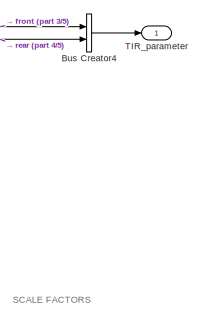
[diagram: param_tire_model - part 1/5, top center region]
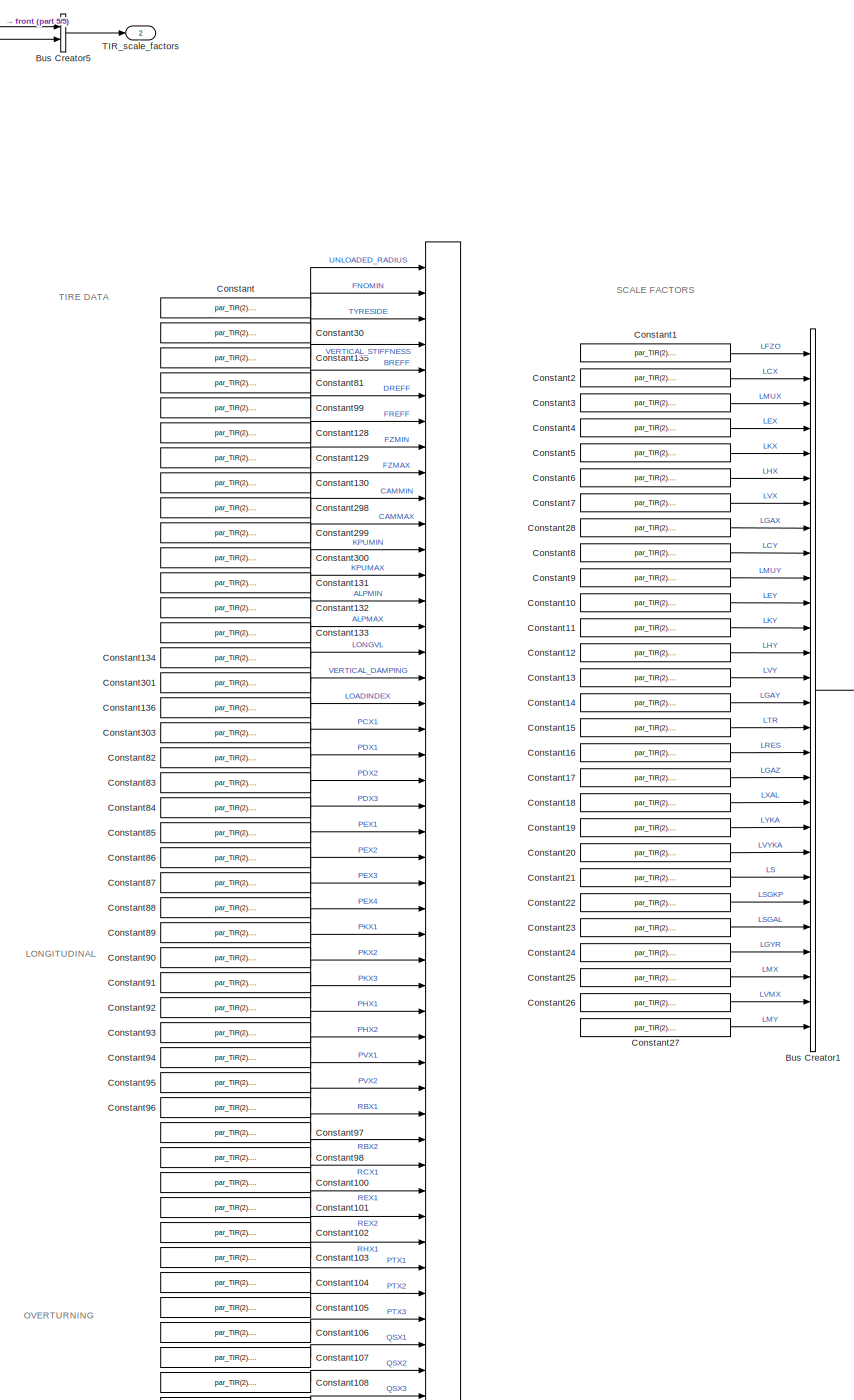
[diagram: param_tire_model - part 2/5, top right region]
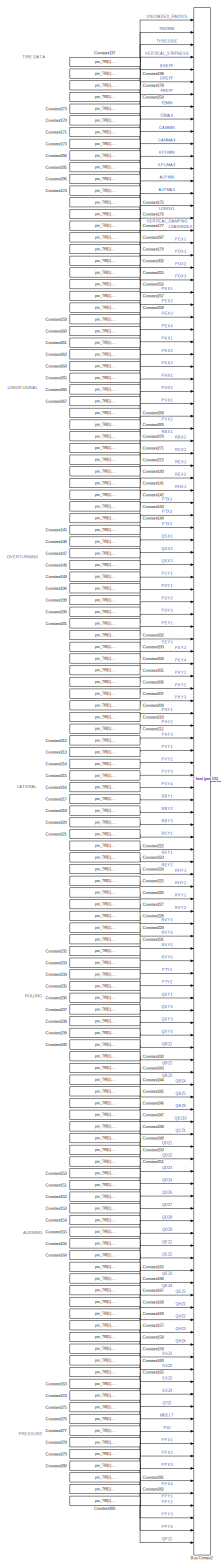
[diagram: param_tire_model - part 3/5, left side, full height]
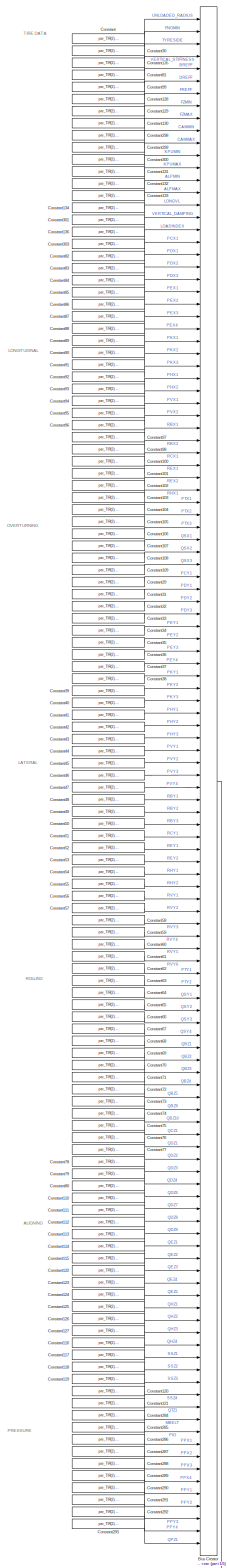
[diagram: param_tire_model - part 4/5, center side, full height]
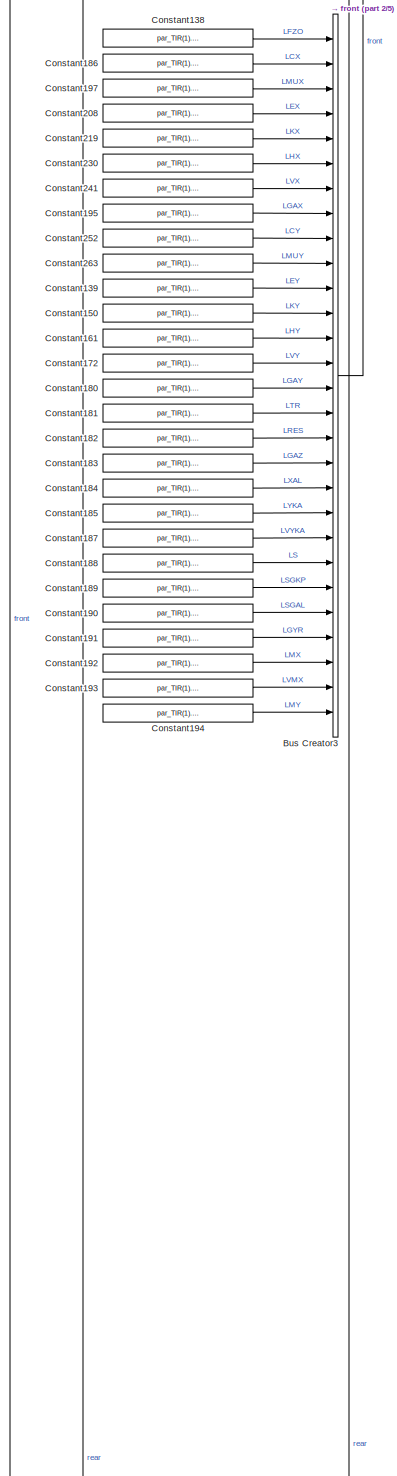
[diagram: param_tire_model - part 5/5, top center region]
BLOCK [SubSystem] param_tire_model
  Ports = [0, 2]
  RequestExecContextInheritance = off
BLOCK [BusCreator] param_tire_model/Bus Creator
  DisplayOption = bar
  InheritFromInputs = on
  Inputs = 124
  Ports = [124, 1]
BLOCK [BusCreator] param_tire_model/Bus Creator1
  DisplayOption = bar
  InheritFromInputs = on
  Inputs = 28
  Ports = [28, 1]
BLOCK [BusCreator] param_tire_model/Bus Creator2
  DisplayOption = bar
  InheritFromInputs = on
  Inputs = 124
  Ports = [124, 1]
BLOCK [BusCreator] param_tire_model/Bus Creator3
  DisplayOption = bar
  InheritFromInputs = on
  Inputs = 28
  Ports = [28, 1]
BLOCK [BusCreator] param_tire_model/Bus Creator4
  DisplayOption = bar
  InheritFromInputs = on
  Inputs = 2
  Ports = [2, 1]
BLOCK [BusCreator] param_tire_model/Bus Creator5
  DisplayOption = bar
  InheritFromInputs = on
  Inputs = 2
  Ports = [2, 1]
BLOCK [Constant] param_tire_model/Constant
  Value = par_TIR(2).UNLOADED_RADIUS
BLOCK [Constant] param_tire_model/Constant1
  Value = par_TIR(2).LFZO
BLOCK [Constant] param_tire_model/Constant10
  Value = par_TIR(2).LEY
BLOCK [Constant] param_tire_model/Constant100
  Value = par_TIR(2).RCX1
BLOCK [Constant] param_tire_model/Constant101
  Value = par_TIR(2).REX1
BLOCK [Constant] param_tire_model/Constant102
  Value = par_TIR(2).REX2
BLOCK [Constant] param_tire_model/Constant103
  Value = par_TIR(2).RHX1
BLOCK [Constant] param_tire_model/Constant104
  Value = par_TIR(2).PTX1
BLOCK [Constant] param_tire_model/Constant105
  Value = par_TIR(2).PTX2
BLOCK [Constant] param_tire_model/Constant106
  Value = par_TIR(2).PTX3
BLOCK [Constant] param_tire_model/Constant107
  Value = par_TIR(2).QSX1
BLOCK [Constant] param_tire_model/Constant108
  Value = par_TIR(2).QSX2
BLOCK [Constant] param_tire_model/Constant109
  Value = par_TIR(2).QSX3
BLOCK [Constant] param_tire_model/Constant11
  Value = par_TIR(2).LKY
BLOCK [Constant] param_tire_model/Constant110
  Value = par_TIR(2).QDZ7
BLOCK [Constant] param_tire_model/Constant111
  Value = par_TIR(2).QDZ8
BLOCK [Constant] param_tire_model/Constant112
  Value = par_TIR(2).QDZ9
BLOCK [Constant] param_tire_model/Constant113
  Value = par_TIR(2).QEZ1
BLOCK [Constant] param_tire_model/Constant114
  Value = par_TIR(2).QEZ2
BLOCK [Constant] param_tire_model/Constant115
  Value = par_TIR(2).QEZ3
BLOCK [Constant] param_tire_model/Constant116
  Value = par_TIR(2).SSZ1
BLOCK [Constant] param_tire_model/Constant117
  Value = par_TIR(2).SSZ2
BLOCK [Constant] param_tire_model/Constant118
  Value = par_TIR(2).SSZ3
BLOCK [Constant] param_tire_model/Constant119
  Value = par_TIR(2).SSZ4
BLOCK [Constant] param_tire_model/Constant12
  Value = par_TIR(2).LHY
BLOCK [Constant] param_tire_model/Constant120
  Value = par_TIR(2).QTZ1
BLOCK [Constant] param_tire_model/Constant121
  Value = par_TIR(2).MBELT
BLOCK [Constant] param_tire_model/Constant122
  Value = par_TIR(2).QEZ4
BLOCK [Constant] param_tire_model/Constant123
  Value = par_TIR(2).QEZ5
BLOCK [Constant] param_tire_model/Constant124
  Value = par_TIR(2).QHZ1
BLOCK [Constant] param_tire_model/Constant125
  Value = par_TIR(2).QHZ2
BLOCK [Constant] param_tire_model/Constant126
  Value = par_TIR(2).QHZ3
BLOCK [Constant] param_tire_model/Constant127
  Value = par_TIR(2).QHZ4
BLOCK [Constant] param_tire_model/Constant128
  Value = par_TIR(2).DREFF
BLOCK [Constant] param_tire_model/Constant129
  Value = par_TIR(2).FREFF
BLOCK [Constant] param_tire_model/Constant13
  Value = par_TIR(2).LVY
BLOCK [Constant] param_tire_model/Constant130
  Value = par_TIR(2).FZMIN
BLOCK [Constant] param_tire_model/Constant131
  Value = par_TIR(2).KPUMIN
BLOCK [Constant] param_tire_model/Constant132
  Value = par_TIR(2).KPUMAX
BLOCK [Constant] param_tire_model/Constant133
  Value = par_TIR(2).ALPMIN
BLOCK [Constant] param_tire_model/Constant134
  Value = par_TIR(2).ALPMAX
BLOCK [Constant] param_tire_model/Constant135
  Value = par_TIR(2).TYRESIDE
BLOCK [Constant] param_tire_model/Constant136
  Value = par_TIR(2).VERTICAL_DAMPING
BLOCK [Constant] param_tire_model/Constant137
  Value = par_TIR(1).UNLOADED_RADIUS
BLOCK [Constant] param_tire_model/Constant138
  Value = par_TIR(1).LFZO
BLOCK [Constant] param_tire_model/Constant139
  Value = par_TIR(1).LEY
BLOCK [Constant] param_tire_model/Constant14
  Value = par_TIR(2).LGAY
BLOCK [Constant] param_tire_model/Constant140
  Value = par_TIR(1).RCX1
BLOCK [Constant] param_tire_model/Constant141
  Value = par_TIR(1).REX1
BLOCK [Constant] param_tire_model/Constant142
  Value = par_TIR(1).REX2
BLOCK [Constant] param_tire_model/Constant143
  Value = par_TIR(1).RHX1
BLOCK [Constant] param_tire_model/Constant144
  Value = par_TIR(1).PTX1
BLOCK [Constant] param_tire_model/Constant145
  Value = par_TIR(1).PTX2
BLOCK [Constant] param_tire_model/Constant146
  Value = par_TIR(1).PTX3
BLOCK [Constant] param_tire_model/Constant147
  Value = par_TIR(1).QSX1
BLOCK [Constant] param_tire_model/Constant148
  Value = par_TIR(1).QSX2
BLOCK [Constant] param_tire_model/Constant149
  Value = par_TIR(1).QSX3
BLOCK [Constant] param_tire_model/Constant15
  Value = par_TIR(2).LTR
BLOCK [Constant] param_tire_model/Constant150
  Value = par_TIR(1).LKY
BLOCK [Constant] param_tire_model/Constant151
  Value = par_TIR(1).QDZ7
BLOCK [Constant] param_tire_model/Constant152
  Value = par_TIR(1).QDZ8
BLOCK [Constant] param_tire_model/Constant153
  Value = par_TIR(1).QDZ9
BLOCK [Constant] param_tire_model/Constant154
  Value = par_TIR(1).QEZ1
BLOCK [Constant] param_tire_model/Constant155
  Value = par_TIR(1).QEZ2
BLOCK [Constant] param_tire_model/Constant156
  Value = par_TIR(1).QEZ3
BLOCK [Constant] param_tire_model/Constant157
  Value = par_TIR(1).SSZ1
BLOCK [Constant] param_tire_model/Constant158
  Value = par_TIR(1).SSZ2
BLOCK [Constant] param_tire_model/Constant159
  Value = par_TIR(1).SSZ3
BLOCK [Constant] param_tire_model/Constant16
  Value = par_TIR(2).LRES
BLOCK [Constant] param_tire_model/Constant160
  Value = par_TIR(1).SSZ4
BLOCK [Constant] param_tire_model/Constant161
  Value = par_TIR(1).LHY
BLOCK [Constant] param_tire_model/Constant162
  Value = par_TIR(1).QTZ1
BLOCK [Constant] param_tire_model/Constant163
  Value = par_TIR(1).MBELT
BLOCK [Constant] param_tire_model/Constant164
  Value = par_TIR(1).QEZ4
BLOCK [Constant] param_tire_model/Constant165
  Value = par_TIR(1).QEZ5
BLOCK [Constant] param_tire_model/Constant166
  Value = par_TIR(1).QHZ1
BLOCK [Constant] param_tire_model/Constant167
  Value = par_TIR(1).QHZ2
BLOCK [Constant] param_tire_model/Constant168
  Value = par_TIR(1).QHZ3
BLOCK [Constant] param_tire_model/Constant169
  Value = par_TIR(1).QHZ4
BLOCK [Constant] param_tire_model/Constant17
  Value = par_TIR(2).LGAZ
BLOCK [Constant] param_tire_model/Constant170
  Value = par_TIR(1).DREFF
BLOCK [Constant] param_tire_model/Constant171
  Value = par_TIR(1).FREFF
BLOCK [Constant] param_tire_model/Constant172
  Value = par_TIR(1).LVY
BLOCK [Constant] param_tire_model/Constant173
  Value = par_TIR(1).FZMIN
BLOCK [Constant] param_tire_model/Constant174
  Value = par_TIR(1).KPUMIN
BLOCK [Constant] param_tire_model/Constant175
  Value = par_TIR(1).KPUMAX
BLOCK [Constant] param_tire_model/Constant176
  Value = par_TIR(1).ALPMIN
BLOCK [Constant] param_tire_model/Constant177
  Value = par_TIR(1).ALPMAX
BLOCK [Constant] param_tire_model/Constant178
  Value = par_TIR(1).TYRESIDE
BLOCK [Constant] param_tire_model/Constant179
  Value = par_TIR(1).VERTICAL_DAMPING
BLOCK [Constant] param_tire_model/Constant18
  Value = par_TIR(2).LXAL
BLOCK [Constant] param_tire_model/Constant180
  Value = par_TIR(1).LGAY
BLOCK [Constant] param_tire_model/Constant181
  Value = par_TIR(1).LTR
BLOCK [Constant] param_tire_model/Constant182
  Value = par_TIR(1).LRES
BLOCK [Constant] param_tire_model/Constant183
  Value = par_TIR(1).LGAZ
BLOCK [Constant] param_tire_model/Constant184
  Value = par_TIR(1).LXAL
BLOCK [Constant] param_tire_model/Constant185
  Value = par_TIR(1).LYKA
BLOCK [Constant] param_tire_model/Constant186
  Value = par_TIR(1).LCX
BLOCK [Constant] param_tire_model/Constant187
  Value = par_TIR(1).LVYKA
BLOCK [Constant] param_tire_model/Constant188
  Value = par_TIR(1).LS
BLOCK [Constant] param_tire_model/Constant189
  Value = par_TIR(1).LSGKP
BLOCK [Constant] param_tire_model/Constant19
  Value = par_TIR(2).LYKA
BLOCK [Constant] param_tire_model/Constant190
  Value = par_TIR(1).LSGAL
BLOCK [Constant] param_tire_model/Constant191
  Value = par_TIR(1).LGYR
BLOCK [Constant] param_tire_model/Constant192
  Value = par_TIR(1).LMX
BLOCK [Constant] param_tire_model/Constant193
  Value = par_TIR(1).LVMX
BLOCK [Constant] param_tire_model/Constant194
  Value = par_TIR(1).LMY
BLOCK [Constant] param_tire_model/Constant195
  Value = par_TIR(1).LGAX
BLOCK [Constant] param_tire_model/Constant196
  Value = par_TIR(1).PCY1
BLOCK [Constant] param_tire_model/Constant197
  Value = par_TIR(1).LMUX
BLOCK [Constant] param_tire_model/Constant198
  Value = par_TIR(1).FNOMIN
BLOCK [Constant] param_tire_model/Constant199
  Value = par_TIR(1).PDY1
BLOCK [Constant] param_tire_model/Constant2
  Value = par_TIR(2).LCX
BLOCK [Constant] param_tire_model/Constant20
  Value = par_TIR(2).LVYKA
BLOCK [Constant] param_tire_model/Constant200
  Value = par_TIR(1).PDY2
BLOCK [Constant] param_tire_model/Constant201
  Value = par_TIR(1).PDY3
BLOCK [Constant] param_tire_model/Constant202
  Value = par_TIR(1).PEY1
BLOCK [Constant] param_tire_model/Constant203
  Value = par_TIR(1).PEY2
BLOCK [Constant] param_tire_model/Constant204
  Value = par_TIR(1).PEY3
BLOCK [Constant] param_tire_model/Constant205
  Value = par_TIR(1).PEY4
BLOCK [Constant] param_tire_model/Constant206
  Value = par_TIR(1).PKY1
BLOCK [Constant] param_tire_model/Constant207
  Value = par_TIR(1).PKY2
BLOCK [Constant] param_tire_model/Constant208
  Value = par_TIR(1).LEX
BLOCK [Constant] param_tire_model/Constant209
  Value = par_TIR(1).PKY3
BLOCK [Constant] param_tire_model/Constant21
  Value = par_TIR(2).LS
BLOCK [Constant] param_tire_model/Constant210
  Value = par_TIR(1).PHY1
BLOCK [Constant] param_tire_model/Constant211
  Value = par_TIR(1).PHY2
BLOCK [Constant] param_tire_model/Constant212
  Value = par_TIR(1).PHY3
BLOCK [Constant] param_tire_model/Constant213
  Value = par_TIR(1).PVY1
BLOCK [Constant] param_tire_model/Constant214
  Value = par_TIR(1).PVY2
BLOCK [Constant] param_tire_model/Constant215
  Value = par_TIR(1).PVY3
BLOCK [Constant] param_tire_model/Constant216
  Value = par_TIR(1).PVY4
BLOCK [Constant] param_tire_model/Constant217
  Value = par_TIR(1).RBY1
BLOCK [Constant] param_tire_model/Constant218
  Value = par_TIR(1).RBY2
BLOCK [Constant] param_tire_model/Constant219
  Value = par_TIR(1).LKX
BLOCK [Constant] param_tire_model/Constant22
  Value = par_TIR(2).LSGKP
BLOCK [Constant] param_tire_model/Constant220
  Value = par_TIR(1).RBY3
BLOCK [Constant] param_tire_model/Constant221
  Value = par_TIR(1).RCY1
BLOCK [Constant] param_tire_model/Constant222
  Value = par_TIR(1).REY1
BLOCK [Constant] param_tire_model/Constant223
  Value = par_TIR(1).REY2
BLOCK [Constant] param_tire_model/Constant224
  Value = par_TIR(1).RHY1
BLOCK [Constant] param_tire_model/Constant225
  Value = par_TIR(1).RHY2
BLOCK [Constant] param_tire_model/Constant226
  Value = par_TIR(1).RVY1
BLOCK [Constant] param_tire_model/Constant227
  Value = par_TIR(1).RVY2
BLOCK [Constant] param_tire_model/Constant228
  Value = par_TIR(1).RVY3
BLOCK [Constant] param_tire_model/Constant229
  Value = par_TIR(1).RVY4
BLOCK [Constant] param_tire_model/Constant23
  Value = par_TIR(2).LSGAL
BLOCK [Constant] param_tire_model/Constant230
  Value = par_TIR(1).LHX
BLOCK [Constant] param_tire_model/Constant231
  Value = par_TIR(1).RVY5
BLOCK [Constant] param_tire_model/Constant232
  Value = par_TIR(1).RVY6
BLOCK [Constant] param_tire_model/Constant233
  Value = par_TIR(1).PTY1
BLOCK [Constant] param_tire_model/Constant234
  Value = par_TIR(1).PTY2
BLOCK [Constant] param_tire_model/Constant235
  Value = par_TIR(1).QSY1
BLOCK [Constant] param_tire_model/Constant236
  Value = par_TIR(1).QSY2
BLOCK [Constant] param_tire_model/Constant237
  Value = par_TIR(1).QSY3
BLOCK [Constant] param_tire_model/Constant238
  Value = par_TIR(1).QSY4
BLOCK [Constant] param_tire_model/Constant239
  Value = par_TIR(1).QBZ1
BLOCK [Constant] param_tire_model/Constant24
  Value = par_TIR(2).LGYR
BLOCK [Constant] param_tire_model/Constant240
  Value = par_TIR(1).QBZ2
BLOCK [Constant] param_tire_model/Constant241
  Value = par_TIR(1).LVX
BLOCK [Constant] param_tire_model/Constant242
  Value = par_TIR(1).QBZ3
BLOCK [Constant] param_tire_model/Constant243
  Value = par_TIR(1).QBZ4
BLOCK [Constant] param_tire_model/Constant244
  Value = par_TIR(1).QBZ5
BLOCK [Constant] param_tire_model/Constant245
  Value = par_TIR(1).QBZ9
BLOCK [Constant] param_tire_model/Constant246
  Value = par_TIR(1).QBZ10
BLOCK [Constant] param_tire_model/Constant247
  Value = par_TIR(1).QCZ1
BLOCK [Constant] param_tire_model/Constant248
  Value = par_TIR(1).QDZ1
BLOCK [Constant] param_tire_model/Constant249
  Value = par_TIR(1).QDZ2
BLOCK [Constant] param_tire_model/Constant25
  Value = par_TIR(2).LMX
BLOCK [Constant] param_tire_model/Constant250
  Value = par_TIR(1).QDZ3
BLOCK [Constant] param_tire_model/Constant251
  Value = par_TIR(1).QDZ4
BLOCK [Constant] param_tire_model/Constant252
  Value = par_TIR(1).LCY
BLOCK [Constant] param_tire_model/Constant253
  Value = par_TIR(1).QDZ6
BLOCK [Constant] param_tire_model/Constant254
  Value = par_TIR(1).VERTICAL_STIFFNESS
BLOCK [Constant] param_tire_model/Constant255
  Value = par_TIR(1).PCX1
BLOCK [Constant] param_tire_model/Constant256
  Value = par_TIR(1).PDX1
BLOCK [Constant] param_tire_model/Constant257
  Value = par_TIR(1).PDX2
BLOCK [Constant] param_tire_model/Constant258
  Value = par_TIR(1).PDX3
BLOCK [Constant] param_tire_model/Constant259
  Value = par_TIR(1).PEX1
BLOCK [Constant] param_tire_model/Constant26
  Value = par_TIR(2).LVMX
BLOCK [Constant] param_tire_model/Constant260
  Value = par_TIR(1).PEX2
BLOCK [Constant] param_tire_model/Constant261
  Value = par_TIR(1).PEX3
BLOCK [Constant] param_tire_model/Constant262
  Value = par_TIR(1).PEX4
BLOCK [Constant] param_tire_model/Constant263
  Value = par_TIR(1).LMUY
BLOCK [Constant] param_tire_model/Constant264
  Value = par_TIR(1).PKX1
BLOCK [Constant] param_tire_model/Constant265
  Value = par_TIR(1).PKX2
BLOCK [Constant] param_tire_model/Constant266
  Value = par_TIR(1).PKX3
BLOCK [Constant] param_tire_model/Constant267
  Value = par_TIR(1).PHX1
BLOCK [Constant] param_tire_model/Constant268
  Value = par_TIR(1).PHX2
BLOCK [Constant] param_tire_model/Constant269
  Value = par_TIR(1).PVX1
BLOCK [Constant] param_tire_model/Constant27
  Value = par_TIR(2).LMY
BLOCK [Constant] param_tire_model/Constant270
  Value = par_TIR(1).PVX2
BLOCK [Constant] param_tire_model/Constant271
  Value = par_TIR(1).RBX1
BLOCK [Constant] param_tire_model/Constant272
  Value = par_TIR(1).RBX2
BLOCK [Constant] param_tire_model/Constant273
  Value = par_TIR(1).BREFF
BLOCK [Constant] param_tire_model/Constant274
  Value = par_TIR(1).PIO
BLOCK [Constant] param_tire_model/Constant275
  Value = par_TIR(1).PPX1
BLOCK [Constant] param_tire_model/Constant276
  Value = par_TIR(1).PPX2
BLOCK [Constant] param_tire_model/Constant277
  Value = par_TIR(1).PPX3
BLOCK [Constant] param_tire_model/Constant278
  Value = par_TIR(1).PPX4
BLOCK [Constant] param_tire_model/Constant279
  Value = par_TIR(1).PPY1
BLOCK [Constant] param_tire_model/Constant28
  Value = par_TIR(2).LGAX
BLOCK [Constant] param_tire_model/Constant280
  Value = par_TIR(1).PPY2
BLOCK [Constant] param_tire_model/Constant281
  Value = par_TIR(1).PPY3
BLOCK [Constant] param_tire_model/Constant282
  Value = par_TIR(1).PPY4
BLOCK [Constant] param_tire_model/Constant283
  Value = par_TIR(1).QPZ1
BLOCK [Constant] param_tire_model/Constant284
  Value = par_TIR(2).PIO
BLOCK [Constant] param_tire_model/Constant285
  Value = par_TIR(2).PPX1
BLOCK [Constant] param_tire_model/Constant286
  Value = par_TIR(2).PPX2
BLOCK [Constant] param_tire_model/Constant287
  Value = par_TIR(2).PPX3
BLOCK [Constant] param_tire_model/Constant288
  Value = par_TIR(2).PPX4
BLOCK [Constant] param_tire_model/Constant289
  Value = par_TIR(2).PPY1
BLOCK [Constant] param_tire_model/Constant29
  Value = par_TIR(2).PCY1
BLOCK [Constant] param_tire_model/Constant290
  Value = par_TIR(2).PPY2
BLOCK [Constant] param_tire_model/Constant291
  Value = par_TIR(2).PPY3
BLOCK [Constant] param_tire_model/Constant292
  Value = par_TIR(2).PPY4
BLOCK [Constant] param_tire_model/Constant293
  Value = par_TIR(2).QPZ1
BLOCK [Constant] param_tire_model/Constant294
  Value = par_TIR(1).FZMAX
BLOCK [Constant] param_tire_model/Constant295
  Value = par_TIR(1).CAMMIN
BLOCK [Constant] param_tire_model/Constant296
  Value = par_TIR(1).CAMMAX
BLOCK [Constant] param_tire_model/Constant297
  Value = par_TIR(1).LONGVL
BLOCK [Constant] param_tire_model/Constant298
  Value = par_TIR(2).FZMAX
BLOCK [Constant] param_tire_model/Constant299
  Value = par_TIR(2).CAMMIN
BLOCK [Constant] param_tire_model/Constant3
  Value = par_TIR(2).LMUX
BLOCK [Constant] param_tire_model/Constant30
  Value = par_TIR(2).FNOMIN
BLOCK [Constant] param_tire_model/Constant300
  Value = par_TIR(2).CAMMAX
BLOCK [Constant] param_tire_model/Constant301
  Value = par_TIR(2).LONGVL
BLOCK [Constant] param_tire_model/Constant302
  Value = par_TIR(1).LOADINDEX
BLOCK [Constant] param_tire_model/Constant303
  Value = par_TIR(2).LOADINDEX
BLOCK [Constant] param_tire_model/Constant31
  Value = par_TIR(2).PDY1
BLOCK [Constant] param_tire_model/Constant32
  Value = par_TIR(2).PDY2
BLOCK [Constant] param_tire_model/Constant33
  Value = par_TIR(2).PDY3
BLOCK [Constant] param_tire_model/Constant34
  Value = par_TIR(2).PEY1
BLOCK [Constant] param_tire_model/Constant35
  Value = par_TIR(2).PEY2
BLOCK [Constant] param_tire_model/Constant36
  Value = par_TIR(2).PEY3
BLOCK [Constant] param_tire_model/Constant37
  Value = par_TIR(2).PEY4
BLOCK [Constant] param_tire_model/Constant38
  Value = par_TIR(2).PKY1
BLOCK [Constant] param_tire_model/Constant39
  Value = par_TIR(2).PKY2
BLOCK [Constant] param_tire_model/Constant4
  Value = par_TIR(2).LEX
BLOCK [Constant] param_tire_model/Constant40
  Value = par_TIR(2).PKY3
BLOCK [Constant] param_tire_model/Constant41
  Value = par_TIR(2).PHY1
BLOCK [Constant] param_tire_model/Constant42
  Value = par_TIR(2).PHY2
BLOCK [Constant] param_tire_model/Constant43
  Value = par_TIR(2).PHY3
BLOCK [Constant] param_tire_model/Constant44
  Value = par_TIR(2).PVY1
BLOCK [Constant] param_tire_model/Constant45
  Value = par_TIR(2).PVY2
BLOCK [Constant] param_tire_model/Constant46
  Value = par_TIR(2).PVY3
BLOCK [Constant] param_tire_model/Constant47
  Value = par_TIR(2).PVY4
BLOCK [Constant] param_tire_model/Constant48
  Value = par_TIR(2).RBY1
BLOCK [Constant] param_tire_model/Constant49
  Value = par_TIR(2).RBY2
BLOCK [Constant] param_tire_model/Constant5
  Value = par_TIR(2).LKX
BLOCK [Constant] param_tire_model/Constant50
  Value = par_TIR(2).RBY3
BLOCK [Constant] param_tire_model/Constant51
  Value = par_TIR(2).RCY1
BLOCK [Constant] param_tire_model/Constant52
  Value = par_TIR(2).REY1
BLOCK [Constant] param_tire_model/Constant53
  Value = par_TIR(2).REY2
BLOCK [Constant] param_tire_model/Constant54
  Value = par_TIR(2).RHY1
BLOCK [Constant] param_tire_model/Constant55
  Value = par_TIR(2).RHY2
BLOCK [Constant] param_tire_model/Constant56
  Value = par_TIR(2).RVY1
BLOCK [Constant] param_tire_model/Constant57
  Value = par_TIR(2).RVY2
BLOCK [Constant] param_tire_model/Constant58
  Value = par_TIR(2).RVY3
BLOCK [Constant] param_tire_model/Constant59
  Value = par_TIR(2).RVY4
BLOCK [Constant] param_tire_model/Constant6
  Value = par_TIR(2).LHX
BLOCK [Constant] param_tire_model/Constant60
  Value = par_TIR(2).RVY5
BLOCK [Constant] param_tire_model/Constant61
  Value = par_TIR(2).RVY6
BLOCK [Constant] param_tire_model/Constant62
  Value = par_TIR(2).PTY1
BLOCK [Constant] param_tire_model/Constant63
  Value = par_TIR(2).PTY2
BLOCK [Constant] param_tire_model/Constant64
  Value = par_TIR(2).QSY1
BLOCK [Constant] param_tire_model/Constant65
  Value = par_TIR(2).QSY2
BLOCK [Constant] param_tire_model/Constant66
  Value = par_TIR(2).QSY3
BLOCK [Constant] param_tire_model/Constant67
  Value = par_TIR(2).QSY4
BLOCK [Constant] param_tire_model/Constant68
  Value = par_TIR(2).QBZ1
BLOCK [Constant] param_tire_model/Constant69
  Value = par_TIR(2).QBZ2
BLOCK [Constant] param_tire_model/Constant7
  Value = par_TIR(2).LVX
BLOCK [Constant] param_tire_model/Constant70
  Value = par_TIR(2).QBZ3
BLOCK [Constant] param_tire_model/Constant71
  Value = par_TIR(2).QBZ4
BLOCK [Constant] param_tire_model/Constant72
  Value = par_TIR(2).QBZ5
BLOCK [Constant] param_tire_model/Constant73
  Value = par_TIR(2).QBZ9
BLOCK [Constant] param_tire_model/Constant74
  Value = par_TIR(2).QBZ10
BLOCK [Constant] param_tire_model/Constant75
  Value = par_TIR(2).QCZ1
BLOCK [Constant] param_tire_model/Constant76
  Value = par_TIR(2).QDZ1
BLOCK [Constant] param_tire_model/Constant77
  Value = par_TIR(2).QDZ2
BLOCK [Constant] param_tire_model/Constant78
  Value = par_TIR(2).QDZ3
BLOCK [Constant] param_tire_model/Constant79
  Value = par_TIR(2).QDZ4
BLOCK [Constant] param_tire_model/Constant8
  Value = par_TIR(2).LCY
BLOCK [Constant] param_tire_model/Constant80
  Value = par_TIR(2).QDZ6
BLOCK [Constant] param_tire_model/Constant81
  Value = par_TIR(2).VERTICAL_STIFFNESS
BLOCK [Constant] param_tire_model/Constant82
  Value = par_TIR(2).PCX1
BLOCK [Constant] param_tire_model/Constant83
  Value = par_TIR(2).PDX1
BLOCK [Constant] param_tire_model/Constant84
  Value = par_TIR(2).PDX2
BLOCK [Constant] param_tire_model/Constant85
  Value = par_TIR(2).PDX3
BLOCK [Constant] param_tire_model/Constant86
  Value = par_TIR(2).PEX1
BLOCK [Constant] param_tire_model/Constant87
  Value = par_TIR(2).PEX2
BLOCK [Constant] param_tire_model/Constant88
  Value = par_TIR(2).PEX3
BLOCK [Constant] param_tire_model/Constant89
  Value = par_TIR(2).PEX4
BLOCK [Constant] param_tire_model/Constant9
  Value = par_TIR(2).LMUY
BLOCK [Constant] param_tire_model/Constant90
  Value = par_TIR(2).PKX1
BLOCK [Constant] param_tire_model/Constant91
  Value = par_TIR(2).PKX2
BLOCK [Constant] param_tire_model/Constant92
  Value = par_TIR(2).PKX3
BLOCK [Constant] param_tire_model/Constant93
  Value = par_TIR(2).PHX1
BLOCK [Constant] param_tire_model/Constant94
  Value = par_TIR(2).PHX2
BLOCK [Constant] param_tire_model/Constant95
  Value = par_TIR(2).PVX1
BLOCK [Constant] param_tire_model/Constant96
  Value = par_TIR(2).PVX2
BLOCK [Constant] param_tire_model/Constant97
  Value = par_TIR(2).RBX1
BLOCK [Constant] param_tire_model/Constant98
  Value = par_TIR(2).RBX2
BLOCK [Constant] param_tire_model/Constant99
  Value = par_TIR(2).BREFF
BLOCK [Outport] param_tire_model/TIR_parameter
  VectorParamsAs1DForOutWhenUnconnected = off
BLOCK [Outport] param_tire_model/TIR_scale_factors
  Port = 2
  VectorParamsAs1DForOutWhenUnconnected = off
ANNOTATION pacejka_trans1: Modification: Added Uuncertainty to lateral Tire Force
ANNOTATION param_tire_model: PRESSURE
ANNOTATION param_tire_model: ALIGNING
ANNOTATION param_tire_model: LATERAL
ANNOTATION param_tire_model: LONGITUDINAL
ANNOTATION param_tire_model: OVERTURNING
ANNOTATION param_tire_model: ROLLING
ANNOTATION param_tire_model: SCALE FACTORS
ANNOTATION param_tire_model: TIRE DATA
LINE pacejka_trans1/Bias:1 -> pacejka_trans1/Sign:1
LINE pacejka_trans1/Bus Creator1:1 -> pacejka_trans1/F0:1
LINE pacejka_trans1/Bus Creator:1 -> pacejka_trans1/output_steering:1
LINE pacejka_trans1/Bus Selector1:1 -> pacejka_trans1/calc_trans_fac:7
LINE pacejka_trans1/Bus Selector1:2 -> pacejka_trans1/calc_trans_fac:8
LINE pacejka_trans1/Bus Selector1:3 -> pacejka_trans1/calc_trans_fac:9
LINE pacejka_trans1/Bus Selector1:4 -> pacejka_trans1/calc_trans_fac:10
LINE pacejka_trans1/Bus Selector1:5 -> pacejka_trans1/calc_trans_fac:11
LINE pacejka_trans1/Bus Selector1:6 -> pacejka_trans1/calc_trans_fac:12
LINE pacejka_trans1/Bus Selector1:7 -> pacejka_trans1/calc_trans_fac:13
LINE pacejka_trans1/Bus Selector2:1 -> pacejka_trans1/calc_forces:36
LINE pacejka_trans1/Bus Selector2:10 -> pacejka_trans1/calc_forces:45
LINE pacejka_trans1/Bus Selector2:11 -> pacejka_trans1/calc_forces:46
LINE pacejka_trans1/Bus Selector2:12 -> pacejka_trans1/calc_forces:47
LINE pacejka_trans1/Bus Selector2:13 -> pacejka_trans1/calc_forces:48
LINE pacejka_trans1/Bus Selector2:14 -> pacejka_trans1/calc_forces:49
LINE pacejka_trans1/Bus Selector2:15 -> pacejka_trans1/calc_forces:50
LINE pacejka_trans1/Bus Selector2:16 -> pacejka_trans1/calc_forces:51
LINE pacejka_trans1/Bus Selector2:17 -> pacejka_trans1/calc_forces:52
LINE pacejka_trans1/Bus Selector2:18 -> pacejka_trans1/calc_forces:53
LINE pacejka_trans1/Bus Selector2:19 -> pacejka_trans1/calc_forces:54
LINE pacejka_trans1/Bus Selector2:2 -> pacejka_trans1/calc_forces:37
LINE pacejka_trans1/Bus Selector2:20 -> pacejka_trans1/calc_forces:55
LINE pacejka_trans1/Bus Selector2:21 -> pacejka_trans1/calc_forces:56
LINE pacejka_trans1/Bus Selector2:22 -> pacejka_trans1/calc_forces:57
LINE pacejka_trans1/Bus Selector2:23 -> pacejka_trans1/calc_forces:58
LINE pacejka_trans1/Bus Selector2:24 -> pacejka_trans1/calc_forces:59
LINE pacejka_trans1/Bus Selector2:25 -> pacejka_trans1/calc_forces:60
LINE pacejka_trans1/Bus Selector2:26 -> pacejka_trans1/calc_forces:61
LINE pacejka_trans1/Bus Selector2:27 -> pacejka_trans1/calc_forces:62
LINE pacejka_trans1/Bus Selector2:28 -> pacejka_trans1/calc_forces:63
LINE pacejka_trans1/Bus Selector2:29 -> pacejka_trans1/calc_forces:64
LINE pacejka_trans1/Bus Selector2:3 -> pacejka_trans1/calc_forces:38
LINE pacejka_trans1/Bus Selector2:30 -> pacejka_trans1/calc_forces:65
LINE pacejka_trans1/Bus Selector2:31 -> pacejka_trans1/calc_forces:66
LINE pacejka_trans1/Bus Selector2:32 -> pacejka_trans1/calc_forces:67
LINE pacejka_trans1/Bus Selector2:33 -> pacejka_trans1/calc_forces:68
LINE pacejka_trans1/Bus Selector2:34 -> pacejka_trans1/calc_forces:69
LINE pacejka_trans1/Bus Selector2:35 -> pacejka_trans1/calc_forces:70
LINE pacejka_trans1/Bus Selector2:36 -> pacejka_trans1/calc_forces:71
LINE pacejka_trans1/Bus Selector2:37 -> pacejka_trans1/calc_forces:72
LINE pacejka_trans1/Bus Selector2:38 -> pacejka_trans1/calc_forces:73
LINE pacejka_trans1/Bus Selector2:39 -> pacejka_trans1/calc_forces:74
LINE pacejka_trans1/Bus Selector2:4 -> pacejka_trans1/calc_forces:39
LINE pacejka_trans1/Bus Selector2:40 -> pacejka_trans1/calc_forces:75
LINE pacejka_trans1/Bus Selector2:41 -> pacejka_trans1/calc_forces:76
LINE pacejka_trans1/Bus Selector2:42 -> pacejka_trans1/calc_forces:77
LINE pacejka_trans1/Bus Selector2:43 -> pacejka_trans1/calc_forces:78
LINE pacejka_trans1/Bus Selector2:44 -> pacejka_trans1/calc_forces:79
LINE pacejka_trans1/Bus Selector2:45 -> pacejka_trans1/calc_forces:80
LINE pacejka_trans1/Bus Selector2:46 -> pacejka_trans1/calc_forces:81
LINE pacejka_trans1/Bus Selector2:47 -> pacejka_trans1/calc_forces:82
LINE pacejka_trans1/Bus Selector2:48 -> pacejka_trans1/calc_forces:83
LINE pacejka_trans1/Bus Selector2:49 -> pacejka_trans1/calc_forces:84
LINE pacejka_trans1/Bus Selector2:5 -> pacejka_trans1/calc_forces:40
LINE pacejka_trans1/Bus Selector2:50 -> pacejka_trans1/calc_forces:85
LINE pacejka_trans1/Bus Selector2:51 -> pacejka_trans1/calc_forces:86
LINE pacejka_trans1/Bus Selector2:52 -> pacejka_trans1/calc_forces:87
LINE pacejka_trans1/Bus Selector2:53 -> pacejka_trans1/calc_forces:88
LINE pacejka_trans1/Bus Selector2:54 -> pacejka_trans1/calc_forces:89
LINE pacejka_trans1/Bus Selector2:55 -> pacejka_trans1/calc_forces:90
LINE pacejka_trans1/Bus Selector2:56 -> pacejka_trans1/calc_forces:91
LINE pacejka_trans1/Bus Selector2:57 -> pacejka_trans1/calc_forces:92
LINE pacejka_trans1/Bus Selector2:58 -> pacejka_trans1/calc_forces:93
LINE pacejka_trans1/Bus Selector2:59 -> pacejka_trans1/calc_forces:94
LINE pacejka_trans1/Bus Selector2:6 -> pacejka_trans1/calc_forces:41
LINE pacejka_trans1/Bus Selector2:60 -> pacejka_trans1/calc_forces:95
LINE pacejka_trans1/Bus Selector2:61 -> pacejka_trans1/calc_forces:96
LINE pacejka_trans1/Bus Selector2:62 -> pacejka_trans1/calc_forces:97
LINE pacejka_trans1/Bus Selector2:63 -> pacejka_trans1/calc_forces:98
LINE pacejka_trans1/Bus Selector2:64 -> pacejka_trans1/calc_forces:99
LINE pacejka_trans1/Bus Selector2:65 -> pacejka_trans1/calc_forces:100
LINE pacejka_trans1/Bus Selector2:66 -> pacejka_trans1/calc_forces:101
LINE pacejka_trans1/Bus Selector2:67 -> pacejka_trans1/calc_forces:102
LINE pacejka_trans1/Bus Selector2:68 -> pacejka_trans1/calc_forces:103
LINE pacejka_trans1/Bus Selector2:69 -> pacejka_trans1/calc_forces:104
LINE pacejka_trans1/Bus Selector2:7 -> pacejka_trans1/calc_forces:42
LINE pacejka_trans1/Bus Selector2:70 -> pacejka_trans1/calc_forces:105
LINE pacejka_trans1/Bus Selector2:71 -> pacejka_trans1/calc_forces:106
LINE pacejka_trans1/Bus Selector2:72 -> pacejka_trans1/calc_forces:107
LINE pacejka_trans1/Bus Selector2:73 -> pacejka_trans1/calc_forces:108
LINE pacejka_trans1/Bus Selector2:74 -> pacejka_trans1/calc_forces:109
LINE pacejka_trans1/Bus Selector2:75 -> pacejka_trans1/calc_forces:110
LINE pacejka_trans1/Bus Selector2:76 -> pacejka_trans1/calc_forces:111
LINE pacejka_trans1/Bus Selector2:77 -> pacejka_trans1/calc_forces:112
LINE pacejka_trans1/Bus Selector2:78 -> pacejka_trans1/calc_forces:113
LINE pacejka_trans1/Bus Selector2:79 -> pacejka_trans1/calc_forces:114
LINE pacejka_trans1/Bus Selector2:8 -> pacejka_trans1/calc_forces:43
LINE pacejka_trans1/Bus Selector2:80 -> pacejka_trans1/calc_forces:115
LINE pacejka_trans1/Bus Selector2:81 -> pacejka_trans1/calc_forces:116
LINE pacejka_trans1/Bus Selector2:82 -> pacejka_trans1/calc_forces:117
LINE pacejka_trans1/Bus Selector2:83 -> pacejka_trans1/calc_forces:118
LINE pacejka_trans1/Bus Selector2:84 -> pacejka_trans1/calc_forces:119
LINE pacejka_trans1/Bus Selector2:85 -> pacejka_trans1/calc_forces:120
LINE pacejka_trans1/Bus Selector2:86 -> pacejka_trans1/calc_forces:121
LINE pacejka_trans1/Bus Selector2:87 -> pacejka_trans1/calc_forces:122
LINE pacejka_trans1/Bus Selector2:88 -> pacejka_trans1/calc_forces:123
LINE pacejka_trans1/Bus Selector2:89 -> pacejka_trans1/calc_forces:124
LINE pacejka_trans1/Bus Selector2:9 -> pacejka_trans1/calc_forces:44
LINE pacejka_trans1/Bus Selector2:90 -> pacejka_trans1/calc_forces:125
LINE pacejka_trans1/Bus Selector2:91 -> pacejka_trans1/calc_forces:126
LINE pacejka_trans1/Bus Selector2:92 -> pacejka_trans1/calc_forces:127
LINE pacejka_trans1/Bus Selector2:93 -> pacejka_trans1/calc_forces:128
LINE pacejka_trans1/Bus Selector2:94 -> pacejka_trans1/calc_forces:129
LINE pacejka_trans1/Bus Selector2:95 -> pacejka_trans1/calc_forces:130
LINE pacejka_trans1/Bus Selector2:96 -> pacejka_trans1/calc_forces:131
LINE pacejka_trans1/Bus Selector2:97 -> pacejka_trans1/calc_forces:132
LINE pacejka_trans1/Bus Selector2:98 -> pacejka_trans1/calc_forces:133
LINE pacejka_trans1/Bus Selector2:99 -> pacejka_trans1/calc_forces:134
LINE pacejka_trans1/Bus Selector3:1 -> pacejka_trans1/calc_forces:6
LINE pacejka_trans1/Bus Selector3:2 -> pacejka_trans1/calc_forces:7
LINE pacejka_trans1/Bus Selector3:3 -> pacejka_trans1/calc_forces:8
LINE pacejka_trans1/Bus Selector3:4 -> pacejka_trans1/calc_forces:9
LINE pacejka_trans1/Bus Selector3:5 -> pacejka_trans1/calc_forces:10
LINE pacejka_trans1/Bus Selector4:1 -> pacejka_trans1/calc_trans_fac:3
LINE pacejka_trans1/Bus Selector4:2 -> pacejka_trans1/calc_trans_fac:4
LINE pacejka_trans1/Bus Selector4:3 -> pacejka_trans1/calc_trans_fac:5
LINE pacejka_trans1/Bus Selector4:4 -> pacejka_trans1/calc_trans_fac:6
LINE pacejka_trans1/Bus Selector5:1 -> pacejka_trans1/calc_trans_fac:16
LINE pacejka_trans1/Bus Selector5:10 -> pacejka_trans1/calc_trans_fac:25
LINE pacejka_trans1/Bus Selector5:11 -> pacejka_trans1/calc_trans_fac:26
LINE pacejka_trans1/Bus Selector5:12 -> pacejka_trans1/calc_trans_fac:27
LINE pacejka_trans1/Bus Selector5:13 -> pacejka_trans1/calc_trans_fac:28
LINE pacejka_trans1/Bus Selector5:14 -> pacejka_trans1/calc_trans_fac:29
LINE pacejka_trans1/Bus Selector5:15 -> pacejka_trans1/calc_trans_fac:30
LINE pacejka_trans1/Bus Selector5:16 -> pacejka_trans1/calc_trans_fac:31
LINE pacejka_trans1/Bus Selector5:17 -> pacejka_trans1/calc_trans_fac:32
LINE pacejka_trans1/Bus Selector5:18 -> pacejka_trans1/calc_trans_fac:33
LINE pacejka_trans1/Bus Selector5:19 -> pacejka_trans1/calc_trans_fac:34
LINE pacejka_trans1/Bus Selector5:2 -> pacejka_trans1/calc_trans_fac:17
LINE pacejka_trans1/Bus Selector5:20 -> pacejka_trans1/calc_trans_fac:35
LINE pacejka_trans1/Bus Selector5:21 -> pacejka_trans1/calc_trans_fac:36
LINE pacejka_trans1/Bus Selector5:22 -> pacejka_trans1/calc_trans_fac:37
LINE pacejka_trans1/Bus Selector5:23 -> pacejka_trans1/calc_trans_fac:38
LINE pacejka_trans1/Bus Selector5:24 -> pacejka_trans1/calc_trans_fac:39
LINE pacejka_trans1/Bus Selector5:25 -> pacejka_trans1/calc_trans_fac:40
LINE pacejka_trans1/Bus Selector5:26 -> pacejka_trans1/calc_trans_fac:41
LINE pacejka_trans1/Bus Selector5:3 -> pacejka_trans1/calc_trans_fac:18
LINE pacejka_trans1/Bus Selector5:4 -> pacejka_trans1/calc_trans_fac:19
LINE pacejka_trans1/Bus Selector5:5 -> pacejka_trans1/calc_trans_fac:20
LINE pacejka_trans1/Bus Selector5:6 -> pacejka_trans1/calc_trans_fac:21
LINE pacejka_trans1/Bus Selector5:7 -> pacejka_trans1/calc_trans_fac:22
LINE pacejka_trans1/Bus Selector5:8 -> pacejka_trans1/calc_trans_fac:23
LINE pacejka_trans1/Bus Selector5:9 -> pacejka_trans1/calc_trans_fac:24
LINE pacejka_trans1/Bus Selector6:1 -> pacejka_trans1/dz:1
NET pacejka_trans1/Bus Selector6:2 -> pacejka_trans1/MATLAB Function:4, pacejka_trans1/cz:1
LINE pacejka_trans1/Bus Selector6:3 -> pacejka_trans1/MATLAB Function:5
LINE pacejka_trans1/Bus Selector6:4 -> pacejka_trans1/MATLAB Function:6
LINE pacejka_trans1/Bus Selector6:5 -> pacejka_trans1/MATLAB Function:7
LINE pacejka_trans1/Bus Selector6:6 -> pacejka_trans1/MATLAB Function:8
LINE pacejka_trans1/Bus Selector6:7 -> pacejka_trans1/MATLAB Function:9
LINE pacejka_trans1/Bus Selector7:1 -> pacejka_trans1/calc_KAPPA_:7
LINE pacejka_trans1/Bus Selector7:2 -> pacejka_trans1/calc_KAPPA_:8
LINE pacejka_trans1/Bus Selector8:1 -> pacejka_trans1/calc_ALPHA:6
LINE pacejka_trans1/Bus Selector8:2 -> pacejka_trans1/calc_ALPHA:7
LINE pacejka_trans1/Bus Selector9:1 -> pacejka_trans1/Product:1
LINE pacejka_trans1/Bus Selector:1 -> pacejka_trans1/calc_forces:11
LINE pacejka_trans1/Bus Selector:10 -> pacejka_trans1/Terminator_2:1
LINE pacejka_trans1/Bus Selector:11 -> pacejka_trans1/calc_forces:21
LINE pacejka_trans1/Bus Selector:12 -> pacejka_trans1/calc_forces:22
LINE pacejka_trans1/Bus Selector:13 -> pacejka_trans1/calc_forces:23
LINE pacejka_trans1/Bus Selector:14 -> pacejka_trans1/calc_forces:24
LINE pacejka_trans1/Bus Selector:15 -> pacejka_trans1/calc_forces:25
LINE pacejka_trans1/Bus Selector:16 -> pacejka_trans1/calc_forces:26
LINE pacejka_trans1/Bus Selector:17 -> pacejka_trans1/calc_forces:27
LINE pacejka_trans1/Bus Selector:18 -> pacejka_trans1/calc_forces:28
LINE pacejka_trans1/Bus Selector:19 -> pacejka_trans1/calc_forces:29
LINE pacejka_trans1/Bus Selector:2 -> pacejka_trans1/calc_forces:12
LINE pacejka_trans1/Bus Selector:20 -> pacejka_trans1/calc_forces:30
LINE pacejka_trans1/Bus Selector:21 -> pacejka_trans1/calc_forces:31
LINE pacejka_trans1/Bus Selector:22 -> pacejka_trans1/calc_forces:32
LINE pacejka_trans1/Bus Selector:23 -> pacejka_trans1/calc_forces:33
LINE pacejka_trans1/Bus Selector:24 -> pacejka_trans1/calc_forces:34
LINE pacejka_trans1/Bus Selector:25 -> pacejka_trans1/calc_forces:35
LINE pacejka_trans1/Bus Selector:3 -> pacejka_trans1/Terminator_1:1
LINE pacejka_trans1/Bus Selector:4 -> pacejka_trans1/calc_forces:14
LINE pacejka_trans1/Bus Selector:5 -> pacejka_trans1/calc_forces:15
LINE pacejka_trans1/Bus Selector:6 -> pacejka_trans1/calc_forces:16
LINE pacejka_trans1/Bus Selector:7 -> pacejka_trans1/calc_forces:17
LINE pacejka_trans1/Bus Selector:8 -> pacejka_trans1/calc_forces:18
LINE pacejka_trans1/Bus Selector:9 -> pacejka_trans1/calc_forces:19
LINE pacejka_trans1/Constant:1 -> pacejka_trans1/Product:2
LINE pacejka_trans1/Fz:1 -> pacejka_trans1/Saturation:1
LINE pacejka_trans1/Gain:1 -> pacejka_trans1/Fy:1
LINE pacejka_trans1/MATLAB Function:1 -> pacejka_trans1/r_stat:1
LINE pacejka_trans1/MATLAB Function:2 -> pacejka_trans1/calc_KAPPA_:2
LINE pacejka_trans1/MATLAB Function:3 -> pacejka_trans1/r_dyn:1
LINE pacejka_trans1/Product1:1 -> pacejka_trans1/calc_forces:3
LINE pacejka_trans1/Product2:1 -> pacejka_trans1/Gain:1
LINE pacejka_trans1/Product3:1 -> pacejka_trans1/Mz:1
LINE pacejka_trans1/Product4:1 -> pacejka_trans1/Mx:1
NET pacejka_trans1/Product5:1 -> pacejka_trans1/calc_forces:4, pacejka_trans1/calc_trans_fac:1
LINE pacejka_trans1/Product:1 -> pacejka_trans1/Bias:1
NET pacejka_trans1/Saturation:1 -> pacejka_trans1/MATLAB Function:1, pacejka_trans1/calc_forces:1, pacejka_trans1/calc_trans_fac:2
NET pacejka_trans1/Sign:1 -> pacejka_trans1/Product1:2, pacejka_trans1/Product2:2, pacejka_trans1/Product3:2, pacejka_trans1/Product4:2, pacejka_trans1/Product5:1
NET pacejka_trans1/Vlow:1 -> pacejka_trans1/calc_ALPHA:5, pacejka_trans1/calc_KAPPA_:6
LINE pacejka_trans1/calc_ALPHA/ALPHASLOW:1 -> pacejka_trans1/calc_ALPHA/Subsystem1:4
LINE pacejka_trans1/calc_ALPHA/ALPMAX:1 -> pacejka_trans1/calc_ALPHA/Saturation Dynamic:1
LINE pacejka_trans1/calc_ALPHA/ALPMIN:1 -> pacejka_trans1/calc_ALPHA/Saturation Dynamic:3
LINE pacejka_trans1/calc_ALPHA/Abs:1 -> pacejka_trans1/calc_ALPHA/Divide:2
LINE pacejka_trans1/calc_ALPHA/Constant:1 -> pacejka_trans1/calc_ALPHA/Switch:3
LINE pacejka_trans1/calc_ALPHA/Divide:1 -> pacejka_trans1/calc_ALPHA/Trigonometric Function:1
LINE pacejka_trans1/calc_ALPHA/SIGMA_A:1 -> pacejka_trans1/calc_ALPHA/Subsystem1:3
NET pacejka_trans1/calc_ALPHA/Saturation Dynamic:1 -> pacejka_trans1/calc_ALPHA/ALPHA_:1, pacejka_trans1/calc_ALPHA/v_low_blending :3
LINE pacejka_trans1/calc_ALPHA/Subsystem1/ALPHASLOW:1 -> pacejka_trans1/calc_ALPHA/Subsystem1/MATLAB Function:1
LINE pacejka_trans1/calc_ALPHA/Subsystem1/Abs:1 -> pacejka_trans1/calc_ALPHA/Subsystem1/Divide1:1
NET pacejka_trans1/calc_ALPHA/Subsystem1/Discrete-Time Integrator2:1 -> pacejka_trans1/calc_ALPHA/Subsystem1/Divide2:1, pacejka_trans1/calc_ALPHA/Subsystem1/MATLAB Function:5, pacejka_trans1/calc_ALPHA/Subsystem1/Product:2
LINE pacejka_trans1/calc_ALPHA/Subsystem1/Divide1:1 -> pacejka_trans1/calc_ALPHA/Subsystem1/Product:1
LINE pacejka_trans1/calc_ALPHA/Subsystem1/Divide2:1 -> pacejka_trans1/calc_ALPHA/Subsystem1/Trigonometric Function:1
LINE pacejka_trans1/calc_ALPHA/Subsystem1/From:1 -> pacejka_trans1/calc_ALPHA/Subsystem1/Discrete-Time Integrator2:2
LINE pacejka_trans1/calc_ALPHA/Subsystem1/MATLAB Function:1 -> pacejka_trans1/calc_ALPHA/Subsystem1/Discrete-Time Integrator2:1
LINE pacejka_trans1/calc_ALPHA/Subsystem1/Product:1 -> pacejka_trans1/calc_ALPHA/Subsystem1/Subtract:2
NET pacejka_trans1/calc_ALPHA/Subsystem1/SIGMA_A:1 -> pacejka_trans1/calc_ALPHA/Subsystem1/Divide1:2, pacejka_trans1/calc_ALPHA/Subsystem1/Divide2:2, pacejka_trans1/calc_ALPHA/Subsystem1/MATLAB Function:7
LINE pacejka_trans1/calc_ALPHA/Subsystem1/Subtract:1 -> pacejka_trans1/calc_ALPHA/Subsystem1/MATLAB Function:6
NET pacejka_trans1/calc_ALPHA/Subsystem1/Trigonometric Function:1 -> pacejka_trans1/calc_ALPHA/Subsystem1/ALPHA_:1, pacejka_trans1/calc_ALPHA/Subsystem1/MATLAB Function:8
LINE pacejka_trans1/calc_ALPHA/Subsystem1/VLOW:1 -> pacejka_trans1/calc_ALPHA/Subsystem1/MATLAB Function:3
NET pacejka_trans1/calc_ALPHA/Subsystem1/VSY:1 -> pacejka_trans1/calc_ALPHA/Subsystem1/MATLAB Function:4, pacejka_trans1/calc_ALPHA/Subsystem1/Subtract:1
NET pacejka_trans1/calc_ALPHA/Subsystem1/VX:1 -> pacejka_trans1/calc_ALPHA/Subsystem1/Abs:1, pacejka_trans1/calc_ALPHA/Subsystem1/MATLAB Function:2
LINE pacejka_trans1/calc_ALPHA/Subsystem1:1 -> pacejka_trans1/calc_ALPHA/Saturation Dynamic:2
LINE pacejka_trans1/calc_ALPHA/Switch:1 -> pacejka_trans1/calc_ALPHA/Subsystem1:1
LINE pacejka_trans1/calc_ALPHA/Trigonometric Function:1 -> pacejka_trans1/calc_ALPHA/v_low_blending :1
LINE pacejka_trans1/calc_ALPHA/VLOW:1 -> pacejka_trans1/calc_ALPHA/Subsystem1:5
NET pacejka_trans1/calc_ALPHA/VSY:1 -> pacejka_trans1/calc_ALPHA/Divide:1, pacejka_trans1/calc_ALPHA/Subsystem1:2
NET pacejka_trans1/calc_ALPHA/VX:1 -> pacejka_trans1/calc_ALPHA/Abs:1, pacejka_trans1/calc_ALPHA/Switch:1, pacejka_trans1/calc_ALPHA/Switch:2, pacejka_trans1/calc_ALPHA/v_low_blending :2
LINE pacejka_trans1/calc_ALPHA/v_low_blending :1 -> pacejka_trans1/calc_ALPHA/ALPHA:1
LINE pacejka_trans1/calc_ALPHA:1 -> pacejka_trans1/Product1:1
LINE pacejka_trans1/calc_ALPHA:2 -> pacejka_trans1/alpha:1
LINE pacejka_trans1/calc_KAPPA_/Divide:1 -> pacejka_trans1/calc_KAPPA_/Unary Minus:1
LINE pacejka_trans1/calc_KAPPA_/KAPPASLOW:1 -> pacejka_trans1/calc_KAPPA_/Subsystem1:5
LINE pacejka_trans1/calc_KAPPA_/KPUMAX:1 -> pacejka_trans1/calc_KAPPA_/Subsystem1:7
LINE pacejka_trans1/calc_KAPPA_/KPUMIN:1 -> pacejka_trans1/calc_KAPPA_/Subsystem1:8
LINE pacejka_trans1/calc_KAPPA_/Kx:1 -> pacejka_trans1/calc_KAPPA_/Subsystem1:4
LINE pacejka_trans1/calc_KAPPA_/SIGMA_K:1 -> pacejka_trans1/calc_KAPPA_/Subsystem1:3
NET pacejka_trans1/calc_KAPPA_/Subsystem1/Abs:1 -> pacejka_trans1/calc_KAPPA_/Subsystem1/Damping:2, pacejka_trans1/calc_KAPPA_/Subsystem1/Divide1:1
LINE pacejka_trans1/calc_KAPPA_/Subsystem1/Add1:1 -> pacejka_trans1/calc_KAPPA_/Subsystem1/MATLAB Function:1
LINE pacejka_trans1/calc_KAPPA_/Subsystem1/Add:1 -> pacejka_trans1/calc_KAPPA_/Subsystem1/MATLAB Function:6
LINE pacejka_trans1/calc_KAPPA_/Subsystem1/Damping/Add1:1 -> pacejka_trans1/calc_KAPPA_/Subsystem1/Damping/Switch:2
LINE pacejka_trans1/calc_KAPPA_/Subsystem1/Damping/Add:1 -> pacejka_trans1/calc_KAPPA_/Subsystem1/Damping/Divide2:2
LINE pacejka_trans1/calc_KAPPA_/Subsystem1/Damping/Constant1:1 -> pacejka_trans1/calc_KAPPA_/Subsystem1/Damping/Divide1:1
LINE pacejka_trans1/calc_KAPPA_/Subsystem1/Damping/Constant2:1 -> pacejka_trans1/calc_KAPPA_/Subsystem1/Damping/Switch:3
LINE pacejka_trans1/calc_KAPPA_/Subsystem1/Damping/Constant:1 -> pacejka_trans1/calc_KAPPA_/Subsystem1/Damping/Add:2
LINE pacejka_trans1/calc_KAPPA_/Subsystem1/Damping/Divide1:1 -> pacejka_trans1/calc_KAPPA_/Subsystem1/Damping/Trigonometric Function:1
LINE pacejka_trans1/calc_KAPPA_/Subsystem1/Damping/Divide2:1 -> pacejka_trans1/calc_KAPPA_/Subsystem1/Damping/Gain:1
LINE pacejka_trans1/calc_KAPPA_/Subsystem1/Damping/Divide3:1 -> pacejka_trans1/calc_KAPPA_/Subsystem1/Damping/damping_reduction:1
LINE pacejka_trans1/calc_KAPPA_/Subsystem1/Damping/Gain:1 -> pacejka_trans1/calc_KAPPA_/Subsystem1/Damping/Switch:1
LINE pacejka_trans1/calc_KAPPA_/Subsystem1/Damping/KX:1 -> pacejka_trans1/calc_KAPPA_/Subsystem1/Damping/Divide3:3
LINE pacejka_trans1/calc_KAPPA_/Subsystem1/Damping/Switch:1 -> pacejka_trans1/calc_KAPPA_/Subsystem1/Damping/Divide3:2
LINE pacejka_trans1/calc_KAPPA_/Subsystem1/Damping/Trigonometric Function:1 -> pacejka_trans1/calc_KAPPA_/Subsystem1/Damping/Add:1
LINE pacejka_trans1/calc_KAPPA_/Subsystem1/Damping/VSx:1 -> pacejka_trans1/calc_KAPPA_/Subsystem1/Damping/Divide3:1
NET pacejka_trans1/calc_KAPPA_/Subsystem1/Damping/Vlow:1 -> pacejka_trans1/calc_KAPPA_/Subsystem1/Damping/Add1:2, pacejka_trans1/calc_KAPPA_/Subsystem1/Damping/Divide1:3
NET pacejka_trans1/calc_KAPPA_/Subsystem1/Damping/absVx:1 -> pacejka_trans1/calc_KAPPA_/Subsystem1/Damping/Add1:1, pacejka_trans1/calc_KAPPA_/Subsystem1/Damping/Divide1:2
LINE pacejka_trans1/calc_KAPPA_/Subsystem1/Damping/kvlow0:1 -> pacejka_trans1/calc_KAPPA_/Subsystem1/Damping/Divide2:1
LINE pacejka_trans1/calc_KAPPA_/Subsystem1/Damping:1 -> pacejka_trans1/calc_KAPPA_/Subsystem1/Subtract:2
NET pacejka_trans1/calc_KAPPA_/Subsystem1/Discrete-Time Integrator2:1 -> pacejka_trans1/calc_KAPPA_/Subsystem1/Divide2:1, pacejka_trans1/calc_KAPPA_/Subsystem1/MATLAB Function:5, pacejka_trans1/calc_KAPPA_/Subsystem1/Product:2
LINE pacejka_trans1/calc_KAPPA_/Subsystem1/Divide1:1 -> pacejka_trans1/calc_KAPPA_/Subsystem1/Product:1
NET pacejka_trans1/calc_KAPPA_/Subsystem1/Divide2:1 -> pacejka_trans1/calc_KAPPA_/Subsystem1/MATLAB Function:8, pacejka_trans1/calc_KAPPA_/Subsystem1/Subtract:1
LINE pacejka_trans1/calc_KAPPA_/Subsystem1/From:1 -> pacejka_trans1/calc_KAPPA_/Subsystem1/Discrete-Time Integrator2:2
LINE pacejka_trans1/calc_KAPPA_/Subsystem1/Gain1:1 -> pacejka_trans1/calc_KAPPA_/Subsystem1/Add1:2
LINE pacejka_trans1/calc_KAPPA_/Subsystem1/Gain:1 -> pacejka_trans1/calc_KAPPA_/Subsystem1/Add1:1
LINE pacejka_trans1/calc_KAPPA_/Subsystem1/KAPPASLOW:1 -> pacejka_trans1/calc_KAPPA_/Subsystem1/Gain:1
LINE pacejka_trans1/calc_KAPPA_/Subsystem1/KPUMAX:1 -> pacejka_trans1/calc_KAPPA_/Subsystem1/Saturation Dynamic:1
LINE pacejka_trans1/calc_KAPPA_/Subsystem1/KPUMIN:1 -> pacejka_trans1/calc_KAPPA_/Subsystem1/Saturation Dynamic:3
LINE pacejka_trans1/calc_KAPPA_/Subsystem1/Kx:1 -> pacejka_trans1/calc_KAPPA_/Subsystem1/Damping:3
LINE pacejka_trans1/calc_KAPPA_/Subsystem1/MATLAB Function:1 -> pacejka_trans1/calc_KAPPA_/Subsystem1/Discrete-Time Integrator2:1
LINE pacejka_trans1/calc_KAPPA_/Subsystem1/Product:1 -> pacejka_trans1/calc_KAPPA_/Subsystem1/Add:2
NET pacejka_trans1/calc_KAPPA_/Subsystem1/SIGMA_K:1 -> pacejka_trans1/calc_KAPPA_/Subsystem1/Divide1:2, pacejka_trans1/calc_KAPPA_/Subsystem1/Divide2:2, pacejka_trans1/calc_KAPPA_/Subsystem1/MATLAB Function:7
LINE pacejka_trans1/calc_KAPPA_/Subsystem1/Saturation Dynamic:1 -> pacejka_trans1/calc_KAPPA_/Subsystem1/KAPPA_:1
LINE pacejka_trans1/calc_KAPPA_/Subsystem1/Subtract:1 -> pacejka_trans1/calc_KAPPA_/Subsystem1/Saturation Dynamic:2
LINE pacejka_trans1/calc_KAPPA_/Subsystem1/Trigonometric Function:1 -> pacejka_trans1/calc_KAPPA_/Subsystem1/Gain1:1
NET pacejka_trans1/calc_KAPPA_/Subsystem1/VSX:1 -> pacejka_trans1/calc_KAPPA_/Subsystem1/Add:1, pacejka_trans1/calc_KAPPA_/Subsystem1/Damping:1, pacejka_trans1/calc_KAPPA_/Subsystem1/MATLAB Function:4
NET pacejka_trans1/calc_KAPPA_/Subsystem1/VX:1 -> pacejka_trans1/calc_KAPPA_/Subsystem1/Abs:1, pacejka_trans1/calc_KAPPA_/Subsystem1/MATLAB Function:2, pacejka_trans1/calc_KAPPA_/Subsystem1/Trigonometric Function:1
NET pacejka_trans1/calc_KAPPA_/Subsystem1/Vlow:1 -> pacejka_trans1/calc_KAPPA_/Subsystem1/Damping:4, pacejka_trans1/calc_KAPPA_/Subsystem1/MATLAB Function:3
NET pacejka_trans1/calc_KAPPA_/Subsystem1:1 -> pacejka_trans1/calc_KAPPA_/KAPPA_:1, pacejka_trans1/calc_KAPPA_/v_low_blending :3
LINE pacejka_trans1/calc_KAPPA_/Unary Minus:1 -> pacejka_trans1/calc_KAPPA_/v_low_blending :1
NET pacejka_trans1/calc_KAPPA_/VSX:1 -> pacejka_trans1/calc_KAPPA_/Divide:1, pacejka_trans1/calc_KAPPA_/Subsystem1:2
NET pacejka_trans1/calc_KAPPA_/VX:1 -> pacejka_trans1/calc_KAPPA_/Subsystem1:1, pacejka_trans1/calc_KAPPA_/not_zero:1, pacejka_trans1/calc_KAPPA_/v_low_blending :2
LINE pacejka_trans1/calc_KAPPA_/Vlow:1 -> pacejka_trans1/calc_KAPPA_/Subsystem1:6
LINE pacejka_trans1/calc_KAPPA_/not_zero/Constant:1 -> pacejka_trans1/calc_KAPPA_/not_zero/Switch:3
NET pacejka_trans1/calc_KAPPA_/not_zero/In1:1 -> pacejka_trans1/calc_KAPPA_/not_zero/Switch:1, pacejka_trans1/calc_KAPPA_/not_zero/Switch:2
LINE pacejka_trans1/calc_KAPPA_/not_zero/Switch:1 -> pacejka_trans1/calc_KAPPA_/not_zero/Out1:1
LINE pacejka_trans1/calc_KAPPA_/not_zero:1 -> pacejka_trans1/calc_KAPPA_/Divide:2
LINE pacejka_trans1/calc_KAPPA_/v_low_blending /Abs:1 -> pacejka_trans1/calc_KAPPA_/v_low_blending /Saturation:1
LINE pacejka_trans1/calc_KAPPA_/v_low_blending /Add1:1 -> pacejka_trans1/calc_KAPPA_/v_low_blending /Gain:1
LINE pacejka_trans1/calc_KAPPA_/v_low_blending /Add2:1 -> pacejka_trans1/calc_KAPPA_/v_low_blending /Trigonometric Function1:1
LINE pacejka_trans1/calc_KAPPA_/v_low_blending /Add3:1 -> pacejka_trans1/calc_KAPPA_/v_low_blending /slip_out:1
LINE pacejka_trans1/calc_KAPPA_/v_low_blending /Bias1:1 -> pacejka_trans1/calc_KAPPA_/v_low_blending /Gain3:1
LINE pacejka_trans1/calc_KAPPA_/v_low_blending /Bias:1 -> pacejka_trans1/calc_KAPPA_/v_low_blending /Gain1:1
LINE pacejka_trans1/calc_KAPPA_/v_low_blending /Constant2:1 -> pacejka_trans1/calc_KAPPA_/v_low_blending /Add2:2
LINE pacejka_trans1/calc_KAPPA_/v_low_blending /Constant:1 -> pacejka_trans1/calc_KAPPA_/v_low_blending /Add1:2
LINE pacejka_trans1/calc_KAPPA_/v_low_blending /Gain1:1 -> pacejka_trans1/calc_KAPPA_/v_low_blending /Product:1
LINE pacejka_trans1/calc_KAPPA_/v_low_blending /Gain2:1 -> pacejka_trans1/calc_KAPPA_/v_low_blending /Bias1:1
LINE pacejka_trans1/calc_KAPPA_/v_low_blending /Gain3:1 -> pacejka_trans1/calc_KAPPA_/v_low_blending /Product1:2
LINE pacejka_trans1/calc_KAPPA_/v_low_blending /Gain:1 -> pacejka_trans1/calc_KAPPA_/v_low_blending /Add2:1
LINE pacejka_trans1/calc_KAPPA_/v_low_blending /Product1:1 -> pacejka_trans1/calc_KAPPA_/v_low_blending /Add3:1
LINE pacejka_trans1/calc_KAPPA_/v_low_blending /Product:1 -> pacejka_trans1/calc_KAPPA_/v_low_blending /Add3:2
LINE pacejka_trans1/calc_KAPPA_/v_low_blending /Saturation:1 -> pacejka_trans1/calc_KAPPA_/v_low_blending /Add1:1
NET pacejka_trans1/calc_KAPPA_/v_low_blending /Trigonometric Function1:1 -> pacejka_trans1/calc_KAPPA_/v_low_blending /Bias:1, pacejka_trans1/calc_KAPPA_/v_low_blending /Gain2:1
LINE pacejka_trans1/calc_KAPPA_/v_low_blending /slip:1 -> pacejka_trans1/calc_KAPPA_/v_low_blending /Product1:1
LINE pacejka_trans1/calc_KAPPA_/v_low_blending /slip_:1 -> pacejka_trans1/calc_KAPPA_/v_low_blending /Product:2
LINE pacejka_trans1/calc_KAPPA_/v_low_blending /vx:1 -> pacejka_trans1/calc_KAPPA_/v_low_blending /Abs:1
LINE pacejka_trans1/calc_KAPPA_/v_low_blending :1 -> pacejka_trans1/calc_KAPPA_/KAPPA:1
LINE pacejka_trans1/calc_KAPPA_:1 -> pacejka_trans1/calc_forces:2
LINE pacejka_trans1/calc_KAPPA_:2 -> pacejka_trans1/kappa:1
LINE pacejka_trans1/calc_forces:1 -> pacejka_trans1/Fx:1
LINE pacejka_trans1/calc_forces:10 -> pacejka_trans1/Bus Creator:5
LINE pacejka_trans1/calc_forces:11 -> pacejka_trans1/Bus Creator:6
LINE pacejka_trans1/calc_forces:12 -> pacejka_trans1/Bus Creator1:1
LINE pacejka_trans1/calc_forces:13 -> pacejka_trans1/Bus Creator1:2
LINE pacejka_trans1/calc_forces:2 -> pacejka_trans1/Product2:1
LINE pacejka_trans1/calc_forces:3 -> pacejka_trans1/Product4:1
LINE pacejka_trans1/calc_forces:4 -> pacejka_trans1/My:1
LINE pacejka_trans1/calc_forces:5 -> pacejka_trans1/Product3:1
LINE pacejka_trans1/calc_forces:6 -> pacejka_trans1/Bus Creator:1
LINE pacejka_trans1/calc_forces:7 -> pacejka_trans1/Bus Creator:2
LINE pacejka_trans1/calc_forces:8 -> pacejka_trans1/Bus Creator:3
LINE pacejka_trans1/calc_forces:9 -> pacejka_trans1/Bus Creator:4
LINE pacejka_trans1/calc_trans_fac:1 -> pacejka_trans1/calc_ALPHA:3
LINE pacejka_trans1/calc_trans_fac:2 -> pacejka_trans1/calc_KAPPA_:3
LINE pacejka_trans1/calc_trans_fac:3 -> pacejka_trans1/calc_KAPPA_:4
LINE pacejka_trans1/calc_trans_fac:4 -> pacejka_trans1/calc_KAPPA_:5
LINE pacejka_trans1/calc_trans_fac:5 -> pacejka_trans1/calc_ALPHA:4
LINE pacejka_trans1/gamma:1 -> pacejka_trans1/Product5:2
NET pacejka_trans1/mu_ext:1 -> pacejka_trans1/calc_forces:13, pacejka_trans1/calc_forces:20, pacejka_trans1/calc_trans_fac:14, pacejka_trans1/calc_trans_fac:15
LINE pacejka_trans1/omega:1 -> pacejka_trans1/MATLAB Function:2
NET pacejka_trans1/param_tir:1 -> pacejka_trans1/Bus Selector2:1, pacejka_trans1/Bus Selector3:1, pacejka_trans1/Bus Selector4:1, pacejka_trans1/Bus Selector5:1, pacejka_trans1/Bus Selector6:1, pacejka_trans1/Bus Selector7:1, pacejka_trans1/Bus Selector8:1, pacejka_trans1/Bus Selector9:1
NET pacejka_trans1/param_tir_scale:1 -> pacejka_trans1/Bus Selector1:1, pacejka_trans1/Bus Selector:1
NET pacejka_trans1/vl:1 -> pacejka_trans1/MATLAB Function:3, pacejka_trans1/calc_ALPHA:1, pacejka_trans1/calc_KAPPA_:1, pacejka_trans1/calc_forces:5
LINE pacejka_trans1/vs:1 -> pacejka_trans1/calc_ALPHA:2
LINE param_tire_model/Bus Creator1:1 -> param_tire_model/Bus Creator5:2
LINE param_tire_model/Bus Creator2:1 -> param_tire_model/Bus Creator4:1
LINE param_tire_model/Bus Creator3:1 -> param_tire_model/Bus Creator5:1
LINE param_tire_model/Bus Creator4:1 -> param_tire_model/TIR_parameter:1
LINE param_tire_model/Bus Creator5:1 -> param_tire_model/TIR_scale_factors:1
LINE param_tire_model/Bus Creator:1 -> param_tire_model/Bus Creator4:2
LINE param_tire_model/Constant100:1 -> param_tire_model/Bus Creator:36
LINE param_tire_model/Constant101:1 -> param_tire_model/Bus Creator:37
LINE param_tire_model/Constant102:1 -> param_tire_model/Bus Creator:38
LINE param_tire_model/Constant103:1 -> param_tire_model/Bus Creator:39
LINE param_tire_model/Constant104:1 -> param_tire_model/Bus Creator:40
LINE param_tire_model/Constant105:1 -> param_tire_model/Bus Creator:41
LINE param_tire_model/Constant106:1 -> param_tire_model/Bus Creator:42
LINE param_tire_model/Constant107:1 -> param_tire_model/Bus Creator:43
LINE param_tire_model/Constant108:1 -> param_tire_model/Bus Creator:44
LINE param_tire_model/Constant109:1 -> param_tire_model/Bus Creator:45
LINE param_tire_model/Constant10:1 -> param_tire_model/Bus Creator1:11
LINE param_tire_model/Constant110:1 -> param_tire_model/Bus Creator:97
LINE param_tire_model/Constant111:1 -> param_tire_model/Bus Creator:98
LINE param_tire_model/Constant112:1 -> param_tire_model/Bus Creator:99
LINE param_tire_model/Constant113:1 -> param_tire_model/Bus Creator:100
LINE param_tire_model/Constant114:1 -> param_tire_model/Bus Creator:101
LINE param_tire_model/Constant115:1 -> param_tire_model/Bus Creator:102
LINE param_tire_model/Constant116:1 -> param_tire_model/Bus Creator:109
LINE param_tire_model/Constant117:1 -> param_tire_model/Bus Creator:110
LINE param_tire_model/Constant118:1 -> param_tire_model/Bus Creator:111
LINE param_tire_model/Constant119:1 -> param_tire_model/Bus Creator:112
LINE param_tire_model/Constant11:1 -> param_tire_model/Bus Creator1:12
LINE param_tire_model/Constant120:1 -> param_tire_model/Bus Creator:113
LINE param_tire_model/Constant121:1 -> param_tire_model/Bus Creator:114
LINE param_tire_model/Constant122:1 -> param_tire_model/Bus Creator:103
LINE param_tire_model/Constant123:1 -> param_tire_model/Bus Creator:104
LINE param_tire_model/Constant124:1 -> param_tire_model/Bus Creator:105
LINE param_tire_model/Constant125:1 -> param_tire_model/Bus Creator:106
LINE param_tire_model/Constant126:1 -> param_tire_model/Bus Creator:107
LINE param_tire_model/Constant127:1 -> param_tire_model/Bus Creator:108
LINE param_tire_model/Constant128:1 -> param_tire_model/Bus Creator:6
LINE param_tire_model/Constant129:1 -> param_tire_model/Bus Creator:7
LINE param_tire_model/Constant12:1 -> param_tire_model/Bus Creator1:13
LINE param_tire_model/Constant130:1 -> param_tire_model/Bus Creator:8
LINE param_tire_model/Constant131:1 -> param_tire_model/Bus Creator:12
LINE param_tire_model/Constant132:1 -> param_tire_model/Bus Creator:13
LINE param_tire_model/Constant133:1 -> param_tire_model/Bus Creator:14
LINE param_tire_model/Constant134:1 -> param_tire_model/Bus Creator:15
LINE param_tire_model/Constant135:1 -> param_tire_model/Bus Creator:3
LINE param_tire_model/Constant136:1 -> param_tire_model/Bus Creator:17
LINE param_tire_model/Constant137:1 -> param_tire_model/Bus Creator2:1
LINE param_tire_model/Constant138:1 -> param_tire_model/Bus Creator3:1
LINE param_tire_model/Constant139:1 -> param_tire_model/Bus Creator3:11
LINE param_tire_model/Constant13:1 -> param_tire_model/Bus Creator1:14
LINE param_tire_model/Constant140:1 -> param_tire_model/Bus Creator2:36
LINE param_tire_model/Constant141:1 -> param_tire_model/Bus Creator2:37
LINE param_tire_model/Constant142:1 -> param_tire_model/Bus Creator2:38
LINE param_tire_model/Constant143:1 -> param_tire_model/Bus Creator2:39
LINE param_tire_model/Constant144:1 -> param_tire_model/Bus Creator2:40
LINE param_tire_model/Constant145:1 -> param_tire_model/Bus Creator2:41
LINE param_tire_model/Constant146:1 -> param_tire_model/Bus Creator2:42
LINE param_tire_model/Constant147:1 -> param_tire_model/Bus Creator2:43
LINE param_tire_model/Constant148:1 -> param_tire_model/Bus Creator2:44
LINE param_tire_model/Constant149:1 -> param_tire_model/Bus Creator2:45
LINE param_tire_model/Constant14:1 -> param_tire_model/Bus Creator1:15
LINE param_tire_model/Constant150:1 -> param_tire_model/Bus Creator3:12
LINE param_tire_model/Constant151:1 -> param_tire_model/Bus Creator2:97
LINE param_tire_model/Constant152:1 -> param_tire_model/Bus Creator2:98
LINE param_tire_model/Constant153:1 -> param_tire_model/Bus Creator2:99
LINE param_tire_model/Constant154:1 -> param_tire_model/Bus Creator2:100
LINE param_tire_model/Constant155:1 -> param_tire_model/Bus Creator2:101
LINE param_tire_model/Constant156:1 -> param_tire_model/Bus Creator2:102
LINE param_tire_model/Constant157:1 -> param_tire_model/Bus Creator2:109
LINE param_tire_model/Constant158:1 -> param_tire_model/Bus Creator2:110
LINE param_tire_model/Constant159:1 -> param_tire_model/Bus Creator2:111
LINE param_tire_model/Constant15:1 -> param_tire_model/Bus Creator1:16
LINE param_tire_model/Constant160:1 -> param_tire_model/Bus Creator2:112
LINE param_tire_model/Constant161:1 -> param_tire_model/Bus Creator3:13
LINE param_tire_model/Constant162:1 -> param_tire_model/Bus Creator2:113
LINE param_tire_model/Constant163:1 -> param_tire_model/Bus Creator2:114
LINE param_tire_model/Constant164:1 -> param_tire_model/Bus Creator2:103
LINE param_tire_model/Constant165:1 -> param_tire_model/Bus Creator2:104
LINE param_tire_model/Constant166:1 -> param_tire_model/Bus Creator2:105
LINE param_tire_model/Constant167:1 -> param_tire_model/Bus Creator2:106
LINE param_tire_model/Constant168:1 -> param_tire_model/Bus Creator2:107
LINE param_tire_model/Constant169:1 -> param_tire_model/Bus Creator2:108
LINE param_tire_model/Constant16:1 -> param_tire_model/Bus Creator1:17
LINE param_tire_model/Constant170:1 -> param_tire_model/Bus Creator2:6
LINE param_tire_model/Constant171:1 -> param_tire_model/Bus Creator2:7
LINE param_tire_model/Constant172:1 -> param_tire_model/Bus Creator3:14
LINE param_tire_model/Constant173:1 -> param_tire_model/Bus Creator2:8
LINE param_tire_model/Constant174:1 -> param_tire_model/Bus Creator2:12
LINE param_tire_model/Constant175:1 -> param_tire_model/Bus Creator2:13
LINE param_tire_model/Constant176:1 -> param_tire_model/Bus Creator2:14
LINE param_tire_model/Constant177:1 -> param_tire_model/Bus Creator2:15
LINE param_tire_model/Constant178:1 -> param_tire_model/Bus Creator2:3
LINE param_tire_model/Constant179:1 -> param_tire_model/Bus Creator2:17
LINE param_tire_model/Constant17:1 -> param_tire_model/Bus Creator1:18
LINE param_tire_model/Constant180:1 -> param_tire_model/Bus Creator3:15
LINE param_tire_model/Constant181:1 -> param_tire_model/Bus Creator3:16
LINE param_tire_model/Constant182:1 -> param_tire_model/Bus Creator3:17
LINE param_tire_model/Constant183:1 -> param_tire_model/Bus Creator3:18
LINE param_tire_model/Constant184:1 -> param_tire_model/Bus Creator3:19
LINE param_tire_model/Constant185:1 -> param_tire_model/Bus Creator3:20
LINE param_tire_model/Constant186:1 -> param_tire_model/Bus Creator3:2
LINE param_tire_model/Constant187:1 -> param_tire_model/Bus Creator3:21
LINE param_tire_model/Constant188:1 -> param_tire_model/Bus Creator3:22
LINE param_tire_model/Constant189:1 -> param_tire_model/Bus Creator3:23
LINE param_tire_model/Constant18:1 -> param_tire_model/Bus Creator1:19
LINE param_tire_model/Constant190:1 -> param_tire_model/Bus Creator3:24
LINE param_tire_model/Constant191:1 -> param_tire_model/Bus Creator3:25
LINE param_tire_model/Constant192:1 -> param_tire_model/Bus Creator3:26
LINE param_tire_model/Constant193:1 -> param_tire_model/Bus Creator3:27
LINE param_tire_model/Constant194:1 -> param_tire_model/Bus Creator3:28
LINE param_tire_model/Constant195:1 -> param_tire_model/Bus Creator3:8
LINE param_tire_model/Constant196:1 -> param_tire_model/Bus Creator2:46
LINE param_tire_model/Constant197:1 -> param_tire_model/Bus Creator3:3
LINE param_tire_model/Constant198:1 -> param_tire_model/Bus Creator2:2
LINE param_tire_model/Constant199:1 -> param_tire_model/Bus Creator2:47
LINE param_tire_model/Constant19:1 -> param_tire_model/Bus Creator1:20
LINE param_tire_model/Constant1:1 -> param_tire_model/Bus Creator1:1
LINE param_tire_model/Constant200:1 -> param_tire_model/Bus Creator2:48
LINE param_tire_model/Constant201:1 -> param_tire_model/Bus Creator2:49
LINE param_tire_model/Constant202:1 -> param_tire_model/Bus Creator2:50
LINE param_tire_model/Constant203:1 -> param_tire_model/Bus Creator2:51
LINE param_tire_model/Constant204:1 -> param_tire_model/Bus Creator2:52
LINE param_tire_model/Constant205:1 -> param_tire_model/Bus Creator2:53
LINE param_tire_model/Constant206:1 -> param_tire_model/Bus Creator2:54
LINE param_tire_model/Constant207:1 -> param_tire_model/Bus Creator2:55
LINE param_tire_model/Constant208:1 -> param_tire_model/Bus Creator3:4
LINE param_tire_model/Constant209:1 -> param_tire_model/Bus Creator2:56
LINE param_tire_model/Constant20:1 -> param_tire_model/Bus Creator1:21
LINE param_tire_model/Constant210:1 -> param_tire_model/Bus Creator2:57
LINE param_tire_model/Constant211:1 -> param_tire_model/Bus Creator2:58
LINE param_tire_model/Constant212:1 -> param_tire_model/Bus Creator2:59
LINE param_tire_model/Constant213:1 -> param_tire_model/Bus Creator2:60
LINE param_tire_model/Constant214:1 -> param_tire_model/Bus Creator2:61
LINE param_tire_model/Constant215:1 -> param_tire_model/Bus Creator2:62
LINE param_tire_model/Constant216:1 -> param_tire_model/Bus Creator2:63
LINE param_tire_model/Constant217:1 -> param_tire_model/Bus Creator2:64
LINE param_tire_model/Constant218:1 -> param_tire_model/Bus Creator2:65
LINE param_tire_model/Constant219:1 -> param_tire_model/Bus Creator3:5
LINE param_tire_model/Constant21:1 -> param_tire_model/Bus Creator1:22
LINE param_tire_model/Constant220:1 -> param_tire_model/Bus Creator2:66
LINE param_tire_model/Constant221:1 -> param_tire_model/Bus Creator2:67
LINE param_tire_model/Constant222:1 -> param_tire_model/Bus Creator2:68
LINE param_tire_model/Constant223:1 -> param_tire_model/Bus Creator2:69
LINE param_tire_model/Constant224:1 -> param_tire_model/Bus Creator2:70
LINE param_tire_model/Constant225:1 -> param_tire_model/Bus Creator2:71
LINE param_tire_model/Constant226:1 -> param_tire_model/Bus Creator2:72
LINE param_tire_model/Constant227:1 -> param_tire_model/Bus Creator2:73
LINE param_tire_model/Constant228:1 -> param_tire_model/Bus Creator2:74
LINE param_tire_model/Constant229:1 -> param_tire_model/Bus Creator2:75
LINE param_tire_model/Constant22:1 -> param_tire_model/Bus Creator1:23
LINE param_tire_model/Constant230:1 -> param_tire_model/Bus Creator3:6
LINE param_tire_model/Constant231:1 -> param_tire_model/Bus Creator2:76
LINE param_tire_model/Constant232:1 -> param_tire_model/Bus Creator2:77
LINE param_tire_model/Constant233:1 -> param_tire_model/Bus Creator2:78
LINE param_tire_model/Constant234:1 -> param_tire_model/Bus Creator2:79
LINE param_tire_model/Constant235:1 -> param_tire_model/Bus Creator2:80
LINE param_tire_model/Constant236:1 -> param_tire_model/Bus Creator2:81
LINE param_tire_model/Constant237:1 -> param_tire_model/Bus Creator2:82
LINE param_tire_model/Constant238:1 -> param_tire_model/Bus Creator2:83
LINE param_tire_model/Constant239:1 -> param_tire_model/Bus Creator2:84
LINE param_tire_model/Constant23:1 -> param_tire_model/Bus Creator1:24
LINE param_tire_model/Constant240:1 -> param_tire_model/Bus Creator2:85
LINE param_tire_model/Constant241:1 -> param_tire_model/Bus Creator3:7
LINE param_tire_model/Constant242:1 -> param_tire_model/Bus Creator2:86
LINE param_tire_model/Constant243:1 -> param_tire_model/Bus Creator2:87
LINE param_tire_model/Constant244:1 -> param_tire_model/Bus Creator2:88
LINE param_tire_model/Constant245:1 -> param_tire_model/Bus Creator2:89
LINE param_tire_model/Constant246:1 -> param_tire_model/Bus Creator2:90
LINE param_tire_model/Constant247:1 -> param_tire_model/Bus Creator2:91
LINE param_tire_model/Constant248:1 -> param_tire_model/Bus Creator2:92
LINE param_tire_model/Constant249:1 -> param_tire_model/Bus Creator2:93
LINE param_tire_model/Constant24:1 -> param_tire_model/Bus Creator1:25
LINE param_tire_model/Constant250:1 -> param_tire_model/Bus Creator2:94
LINE param_tire_model/Constant251:1 -> param_tire_model/Bus Creator2:95
LINE param_tire_model/Constant252:1 -> param_tire_model/Bus Creator3:9
LINE param_tire_model/Constant253:1 -> param_tire_model/Bus Creator2:96
LINE param_tire_model/Constant254:1 -> param_tire_model/Bus Creator2:4
LINE param_tire_model/Constant255:1 -> param_tire_model/Bus Creator2:19
LINE param_tire_model/Constant256:1 -> param_tire_model/Bus Creator2:20
LINE param_tire_model/Constant257:1 -> param_tire_model/Bus Creator2:21
LINE param_tire_model/Constant258:1 -> param_tire_model/Bus Creator2:22
LINE param_tire_model/Constant259:1 -> param_tire_model/Bus Creator2:23
LINE param_tire_model/Constant25:1 -> param_tire_model/Bus Creator1:26
LINE param_tire_model/Constant260:1 -> param_tire_model/Bus Creator2:24
LINE param_tire_model/Constant261:1 -> param_tire_model/Bus Creator2:25
LINE param_tire_model/Constant262:1 -> param_tire_model/Bus Creator2:26
LINE param_tire_model/Constant263:1 -> param_tire_model/Bus Creator3:10
LINE param_tire_model/Constant264:1 -> param_tire_model/Bus Creator2:27
LINE param_tire_model/Constant265:1 -> param_tire_model/Bus Creator2:28
LINE param_tire_model/Constant266:1 -> param_tire_model/Bus Creator2:29
LINE param_tire_model/Constant267:1 -> param_tire_model/Bus Creator2:30
LINE param_tire_model/Constant268:1 -> param_tire_model/Bus Creator2:31
LINE param_tire_model/Constant269:1 -> param_tire_model/Bus Creator2:32
LINE param_tire_model/Constant26:1 -> param_tire_model/Bus Creator1:27
LINE param_tire_model/Constant270:1 -> param_tire_model/Bus Creator2:33
LINE param_tire_model/Constant271:1 -> param_tire_model/Bus Creator2:34
LINE param_tire_model/Constant272:1 -> param_tire_model/Bus Creator2:35
LINE param_tire_model/Constant273:1 -> param_tire_model/Bus Creator2:5
LINE param_tire_model/Constant274:1 -> param_tire_model/Bus Creator2:115
LINE param_tire_model/Constant275:1 -> param_tire_model/Bus Creator2:116
LINE param_tire_model/Constant276:1 -> param_tire_model/Bus Creator2:117
LINE param_tire_model/Constant277:1 -> param_tire_model/Bus Creator2:118
LINE param_tire_model/Constant278:1 -> param_tire_model/Bus Creator2:119
LINE param_tire_model/Constant279:1 -> param_tire_model/Bus Creator2:120
LINE param_tire_model/Constant27:1 -> param_tire_model/Bus Creator1:28
LINE param_tire_model/Constant280:1 -> param_tire_model/Bus Creator2:121
LINE param_tire_model/Constant281:1 -> param_tire_model/Bus Creator2:122
LINE param_tire_model/Constant282:1 -> param_tire_model/Bus Creator2:123
LINE param_tire_model/Constant283:1 -> param_tire_model/Bus Creator2:124
LINE param_tire_model/Constant284:1 -> param_tire_model/Bus Creator:115
LINE param_tire_model/Constant285:1 -> param_tire_model/Bus Creator:116
LINE param_tire_model/Constant286:1 -> param_tire_model/Bus Creator:117
LINE param_tire_model/Constant287:1 -> param_tire_model/Bus Creator:118
LINE param_tire_model/Constant288:1 -> param_tire_model/Bus Creator:119
LINE param_tire_model/Constant289:1 -> param_tire_model/Bus Creator:120
LINE param_tire_model/Constant28:1 -> param_tire_model/Bus Creator1:8
LINE param_tire_model/Constant290:1 -> param_tire_model/Bus Creator:121
LINE param_tire_model/Constant291:1 -> param_tire_model/Bus Creator:122
LINE param_tire_model/Constant292:1 -> param_tire_model/Bus Creator:123
LINE param_tire_model/Constant293:1 -> param_tire_model/Bus Creator:124
LINE param_tire_model/Constant294:1 -> param_tire_model/Bus Creator2:9
LINE param_tire_model/Constant295:1 -> param_tire_model/Bus Creator2:10
LINE param_tire_model/Constant296:1 -> param_tire_model/Bus Creator2:11
LINE param_tire_model/Constant297:1 -> param_tire_model/Bus Creator2:16
LINE param_tire_model/Constant298:1 -> param_tire_model/Bus Creator:9
LINE param_tire_model/Constant299:1 -> param_tire_model/Bus Creator:10
LINE param_tire_model/Constant29:1 -> param_tire_model/Bus Creator:46
LINE param_tire_model/Constant2:1 -> param_tire_model/Bus Creator1:2
LINE param_tire_model/Constant300:1 -> param_tire_model/Bus Creator:11
LINE param_tire_model/Constant301:1 -> param_tire_model/Bus Creator:16
LINE param_tire_model/Constant302:1 -> param_tire_model/Bus Creator2:18
LINE param_tire_model/Constant303:1 -> param_tire_model/Bus Creator:18
LINE param_tire_model/Constant30:1 -> param_tire_model/Bus Creator:2
LINE param_tire_model/Constant31:1 -> param_tire_model/Bus Creator:47
LINE param_tire_model/Constant32:1 -> param_tire_model/Bus Creator:48
LINE param_tire_model/Constant33:1 -> param_tire_model/Bus Creator:49
LINE param_tire_model/Constant34:1 -> param_tire_model/Bus Creator:50
LINE param_tire_model/Constant35:1 -> param_tire_model/Bus Creator:51
LINE param_tire_model/Constant36:1 -> param_tire_model/Bus Creator:52
LINE param_tire_model/Constant37:1 -> param_tire_model/Bus Creator:53
LINE param_tire_model/Constant38:1 -> param_tire_model/Bus Creator:54
LINE param_tire_model/Constant39:1 -> param_tire_model/Bus Creator:55
LINE param_tire_model/Constant3:1 -> param_tire_model/Bus Creator1:3
LINE param_tire_model/Constant40:1 -> param_tire_model/Bus Creator:56
LINE param_tire_model/Constant41:1 -> param_tire_model/Bus Creator:57
LINE param_tire_model/Constant42:1 -> param_tire_model/Bus Creator:58
LINE param_tire_model/Constant43:1 -> param_tire_model/Bus Creator:59
LINE param_tire_model/Constant44:1 -> param_tire_model/Bus Creator:60
LINE param_tire_model/Constant45:1 -> param_tire_model/Bus Creator:61
LINE param_tire_model/Constant46:1 -> param_tire_model/Bus Creator:62
LINE param_tire_model/Constant47:1 -> param_tire_model/Bus Creator:63
LINE param_tire_model/Constant48:1 -> param_tire_model/Bus Creator:64
LINE param_tire_model/Constant49:1 -> param_tire_model/Bus Creator:65
LINE param_tire_model/Constant4:1 -> param_tire_model/Bus Creator1:4
LINE param_tire_model/Constant50:1 -> param_tire_model/Bus Creator:66
LINE param_tire_model/Constant51:1 -> param_tire_model/Bus Creator:67
LINE param_tire_model/Constant52:1 -> param_tire_model/Bus Creator:68
LINE param_tire_model/Constant53:1 -> param_tire_model/Bus Creator:69
LINE param_tire_model/Constant54:1 -> param_tire_model/Bus Creator:70
LINE param_tire_model/Constant55:1 -> param_tire_model/Bus Creator:71
LINE param_tire_model/Constant56:1 -> param_tire_model/Bus Creator:72
LINE param_tire_model/Constant57:1 -> param_tire_model/Bus Creator:73
LINE param_tire_model/Constant58:1 -> param_tire_model/Bus Creator:74
LINE param_tire_model/Constant59:1 -> param_tire_model/Bus Creator:75
LINE param_tire_model/Constant5:1 -> param_tire_model/Bus Creator1:5
LINE param_tire_model/Constant60:1 -> param_tire_model/Bus Creator:76
LINE param_tire_model/Constant61:1 -> param_tire_model/Bus Creator:77
LINE param_tire_model/Constant62:1 -> param_tire_model/Bus Creator:78
LINE param_tire_model/Constant63:1 -> param_tire_model/Bus Creator:79
LINE param_tire_model/Constant64:1 -> param_tire_model/Bus Creator:80
LINE param_tire_model/Constant65:1 -> param_tire_model/Bus Creator:81
LINE param_tire_model/Constant66:1 -> param_tire_model/Bus Creator:82
LINE param_tire_model/Constant67:1 -> param_tire_model/Bus Creator:83
LINE param_tire_model/Constant68:1 -> param_tire_model/Bus Creator:84
LINE param_tire_model/Constant69:1 -> param_tire_model/Bus Creator:85
LINE param_tire_model/Constant6:1 -> param_tire_model/Bus Creator1:6
LINE param_tire_model/Constant70:1 -> param_tire_model/Bus Creator:86
LINE param_tire_model/Constant71:1 -> param_tire_model/Bus Creator:87
LINE param_tire_model/Constant72:1 -> param_tire_model/Bus Creator:88
LINE param_tire_model/Constant73:1 -> param_tire_model/Bus Creator:89
LINE param_tire_model/Constant74:1 -> param_tire_model/Bus Creator:90
LINE param_tire_model/Constant75:1 -> param_tire_model/Bus Creator:91
LINE param_tire_model/Constant76:1 -> param_tire_model/Bus Creator:92
LINE param_tire_model/Constant77:1 -> param_tire_model/Bus Creator:93
LINE param_tire_model/Constant78:1 -> param_tire_model/Bus Creator:94
LINE param_tire_model/Constant79:1 -> param_tire_model/Bus Creator:95
LINE param_tire_model/Constant7:1 -> param_tire_model/Bus Creator1:7
LINE param_tire_model/Constant80:1 -> param_tire_model/Bus Creator:96
LINE param_tire_model/Constant81:1 -> param_tire_model/Bus Creator:4
LINE param_tire_model/Constant82:1 -> param_tire_model/Bus Creator:19
LINE param_tire_model/Constant83:1 -> param_tire_model/Bus Creator:20
LINE param_tire_model/Constant84:1 -> param_tire_model/Bus Creator:21
LINE param_tire_model/Constant85:1 -> param_tire_model/Bus Creator:22
LINE param_tire_model/Constant86:1 -> param_tire_model/Bus Creator:23
LINE param_tire_model/Constant87:1 -> param_tire_model/Bus Creator:24
LINE param_tire_model/Constant88:1 -> param_tire_model/Bus Creator:25
LINE param_tire_model/Constant89:1 -> param_tire_model/Bus Creator:26
LINE param_tire_model/Constant8:1 -> param_tire_model/Bus Creator1:9
LINE param_tire_model/Constant90:1 -> param_tire_model/Bus Creator:27
LINE param_tire_model/Constant91:1 -> param_tire_model/Bus Creator:28
LINE param_tire_model/Constant92:1 -> param_tire_model/Bus Creator:29
LINE param_tire_model/Constant93:1 -> param_tire_model/Bus Creator:30
LINE param_tire_model/Constant94:1 -> param_tire_model/Bus Creator:31
LINE param_tire_model/Constant95:1 -> param_tire_model/Bus Creator:32
LINE param_tire_model/Constant96:1 -> param_tire_model/Bus Creator:33
LINE param_tire_model/Constant97:1 -> param_tire_model/Bus Creator:34
LINE param_tire_model/Constant98:1 -> param_tire_model/Bus Creator:35
LINE param_tire_model/Constant99:1 -> param_tire_model/Bus Creator:5
LINE param_tire_model/Constant9:1 -> param_tire_model/Bus Creator1:10
LINE param_tire_model/Constant:1 -> param_tire_model/Bus Creator:1
note: NET lines group one-source signal fan-out (src -> all destinations, sorted); 1:1 wires keep LINE
CHART pacejka_trans1/MATLAB Function states=1 transitions=1
  STATE_LABEL 'eML_blk_kernel()'
  STATE_LABEL 'SCRIPT:\nfunction [RSTAT,VSX,RE] = longitudinal_slip_speed(FZ,OMEGA,VX,VERTICAL_STIFFNESS,FNOMIN,UNLOADED_RADIUS,BREFF,DREFF,FREFF)\n\nRHO = FZ/VERTICAL_STIFFNESS;\nRHOFZ0 = FNOMIN/VERTICAL_STIFFNESS;\nRHOD = RHO/RHOFZ0;\n\nRE = UNLOADED_RADIUS-RHOFZ0*(DREFF*atan(BREFF*RHOD)+FREFF*RHOD);\nVSX = VX-OMEGA*RE;\nRSTAT=UNLOADED_RADIUS-RHO;\n\nend'
CHART pacejka_trans1/calc_forces states=1 transitions=1
  STATE_LABEL 'eML_blk_kernel()'
  STATE_LABEL 'SCRIPT:\nfunction [FX,FY,MX,MY,MZ,T,S,Q,c_kappa,T_Z,KX,DX,DY] = magic_formula(...\n    FZ, KAPPA, ALPHA, GAMMA, VX, IP,...                                         % INPUTS\n    FNOMIN, UNLOADED_RADIUS, LONGVL, LOADINDEX,...                              % TIRE DATA\n    LFZO,LCX,LMUX,LEX,LKX,LHX,LVX,LGAX,LCY,...                                  % SCALING FACTORS\n    LMUY,LEY,LKY,LHY,LVY,LGAY,LTR,LRES,L...<+3608ch>'
CHART pacejka_trans1/calc_trans_fac states=1 transitions=1
  STATE_LABEL 'eML_blk_kernel()'
  STATE_LABEL 'SCRIPT:\nfunction [SIGMA_A,SIGMA_K,KX,KAPPASLOW,ALPHASLOW] = stretched_string(...\n    GAMMA, FZ, IP, ...\n    FNOMIN, UNLOADED_RADIUS, FZMIN, ...\n    LFZO, LSGAL, LSGKP, LKX, LKY, LGAX, LGAY, LMUX, LMUY, ...\n    PTX1, PTX2, PTX3,  PTY1, PTY2, PKY1, PKY2, PKY3, PKX1, PKX2, PKX3, PDX1, PDX2, PDX3, PDY1, PDY2, PDY3, ...\n    PIO, PPX1, PPX2, PPX3, PPX4, PPY1, PPY2, PPY3, PPY4)\n\n%% INITIALIZATION\n\n% calc...<+1264ch>'
CHART pacejka_trans1/calc_ALPHA/Subsystem1/MATLAB Function states=1 transitions=1
  STATE_LABEL 'eML_blk_kernel()'
  STATE_LABEL 'SCRIPT:\nfunction vp1 = fcn(ALPHASL,VX,VLOW,VSY,v,vp,SIGMAA, ALPHAreq_)\n%#codegen\n\nif abs(ALPHAreq_)>ALPHASL && abs(VX)<VLOW && (VSY+abs(VX)*v/SIGMAA)*v<0\n    vp1=0;\nelse\n    vp1=vp;\nend'
CHART pacejka_trans1/calc_KAPPA_/Subsystem1/MATLAB Function states=1 transitions=1
  STATE_LABEL 'eML_blk_kernel()'
  STATE_LABEL 'SCRIPT:\nfunction up1 = fcn(AKSL,VX,VLOW,VSX,u,up,SIGMAK, K_)\n%#codegen\n\nif abs(K_)>AKSL && abs(VX)<VLOW && (VSX+abs(VX)*u/SIGMAK)*u<0\n    up1=0;\nelse\n    up1=up;\nend'
CHART  states=0 transitions=0
CHART  states=0 transitions=0
CHART  states=0 transitions=0
CHART  states=0 transitions=0
CHART  states=0 transitions=0
